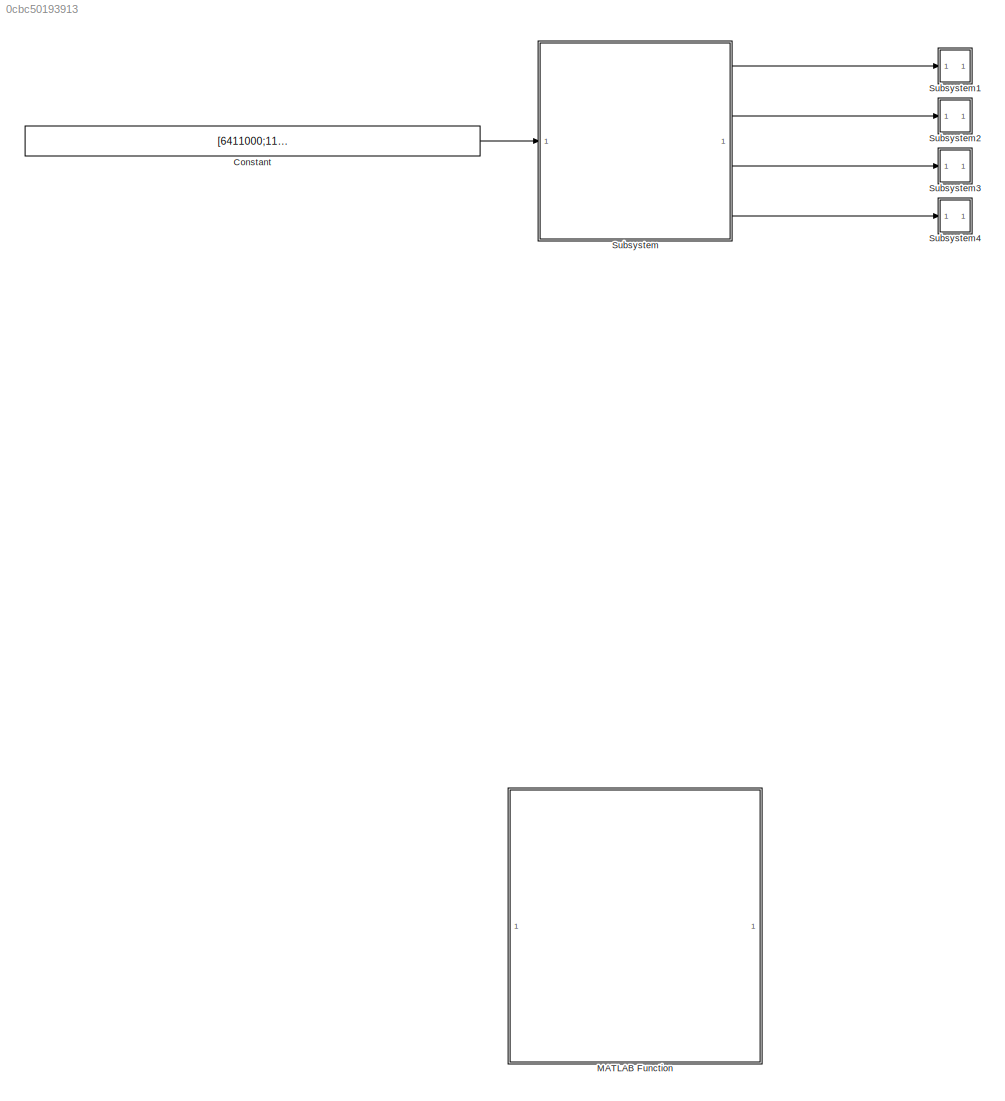
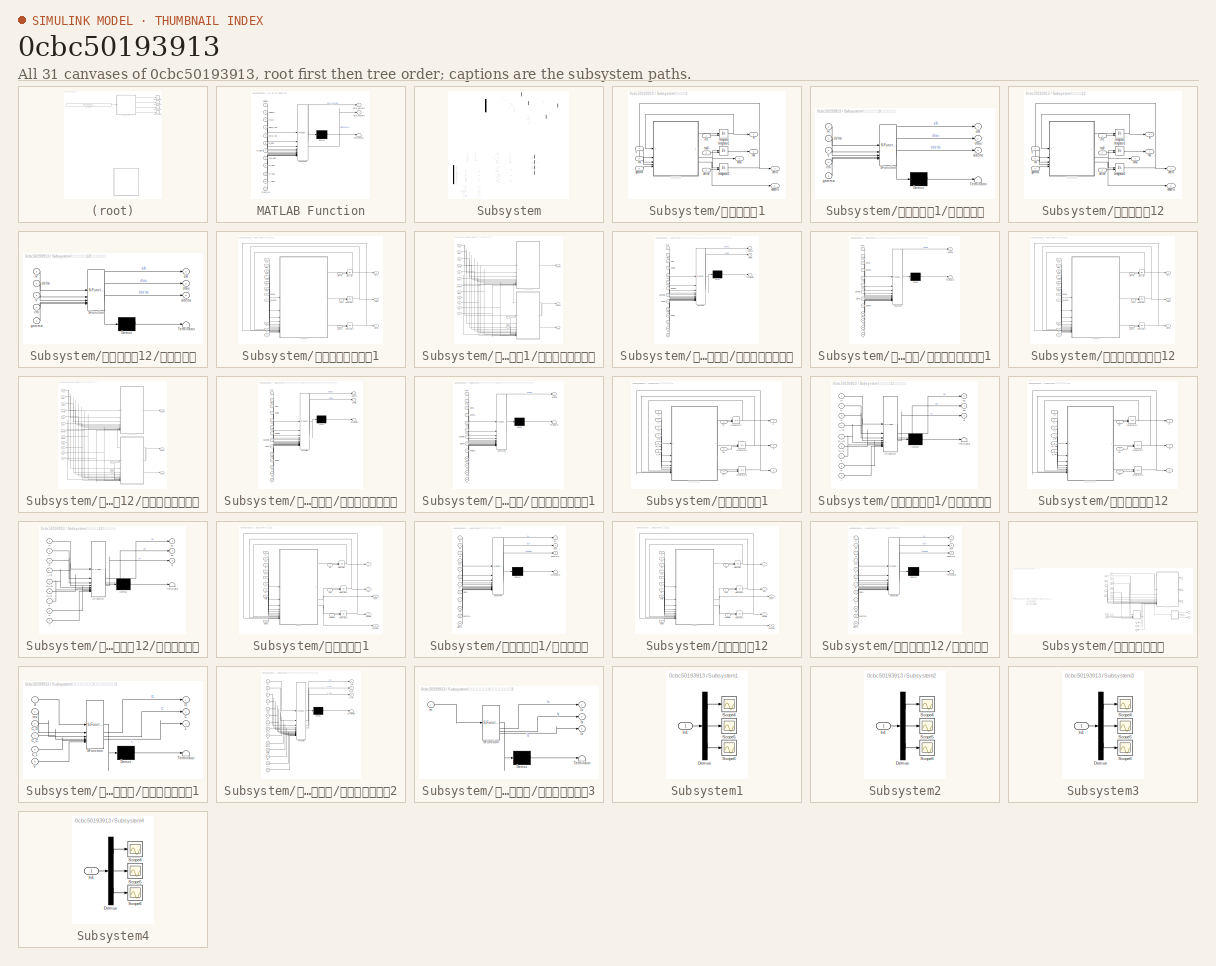
[diagram: thumbnail index - all 31 canvases of the model, root first then tree order]
MODEL slx_0cbc50193913
KIND model
CONFIG AbsTol = auto
CONFIG EnableMultiTasking = off
CONFIG FixedStep = 0.01
CONFIG MaxStep = auto
CONFIG MinStep = auto
CONFIG RelTol = 1e-3
CONFIG SampleTimeConstraint = Unconstrained
CONFIG SolverName = FixedStepAuto
CONFIG StartTime = 0.0
CONFIG StopTime = 10.0
BLOCK [Constant] Constant
  Value = [6411000;118.8;32;3000;180;0;2;3;2;0;0;0]
BLOCK [SubSystem] MATLAB Function
  ErrorFcn = Stateflow.Translate.translate
  PermitHierarchicalResolution = ExplicitOnly
  SFBlockType = MATLAB Function
  TreatAsAtomicUnit = on
BLOCK [Demux] MATLAB Function/ Demux 
  Outputs = 1
BLOCK [S-Function] MATLAB Function/ SFunction 
  EnableBusSupport = off
  FunctionName = sf_sfun
  PortCounts = [12 3]
  SFcnIsStateOwnerBlock = off
  SFunctionDeploymentMode = off
  Tag = Stateflow S-Function 14
BLOCK [Terminator] MATLAB Function/ Terminator 
BLOCK [Outport] MATLAB Function/aero_params
BLOCK [Inport] MATLAB Function/alpha_rad
  Port = 4
BLOCK [Outport] MATLAB Function/atmosphere
  Port = 2
BLOCK [Inport] MATLAB Function/beta_rad
  Port = 5
BLOCK [Inport] MATLAB Function/height
BLOCK [Inport] MATLAB Function/le_deg
  Port = 6
BLOCK [Inport] MATLAB Function/mach
  Port = 3
BLOCK [Inport] MATLAB Function/mass_kg
  Port = 12
BLOCK [Inport] MATLAB Function/p_rads
  Port = 9
BLOCK [Inport] MATLAB Function/q_rads
  Port = 10
BLOCK [Inport] MATLAB Function/r_rads
  Port = 11
BLOCK [Inport] MATLAB Function/re_deg
  Port = 7
BLOCK [Inport] MATLAB Function/rud_deg
  Port = 8
BLOCK [Inport] MATLAB Function/velocity
  Port = 2
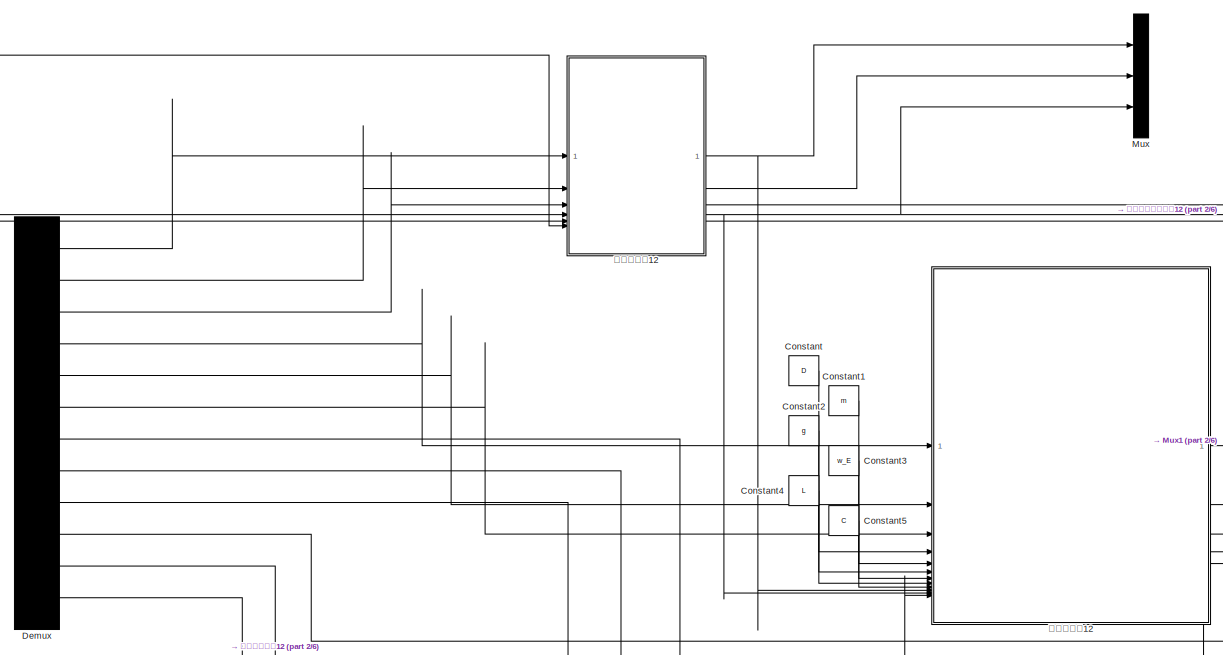
[diagram: Subsystem - part 1/6, top center region]
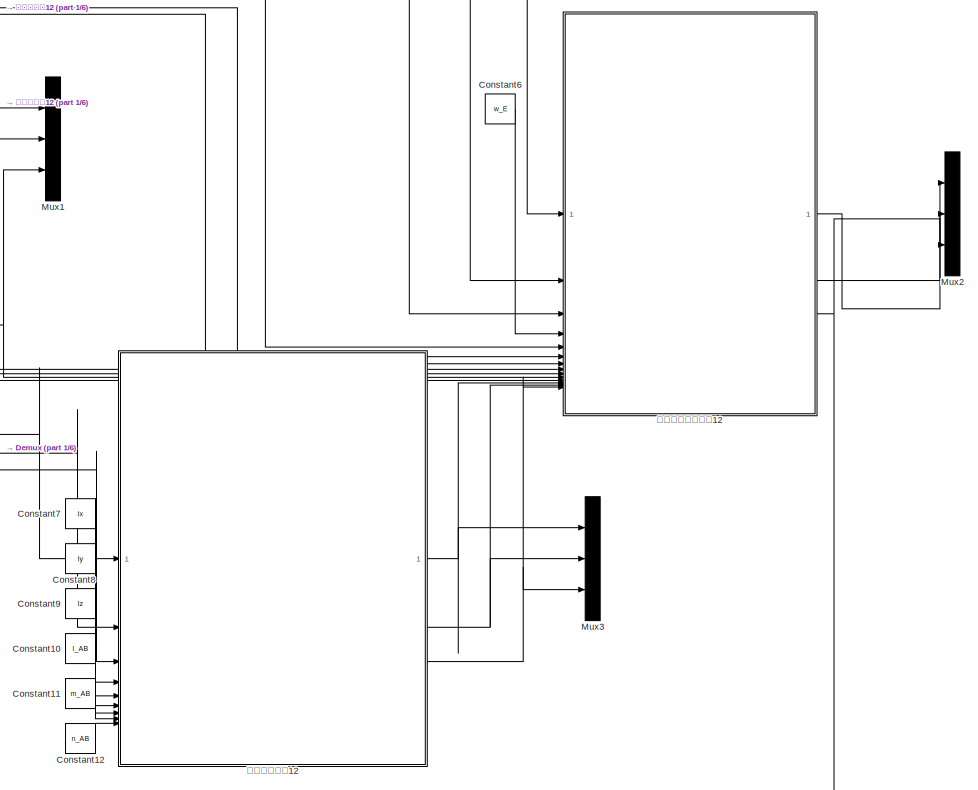
[diagram: Subsystem - part 2/6, top right region]
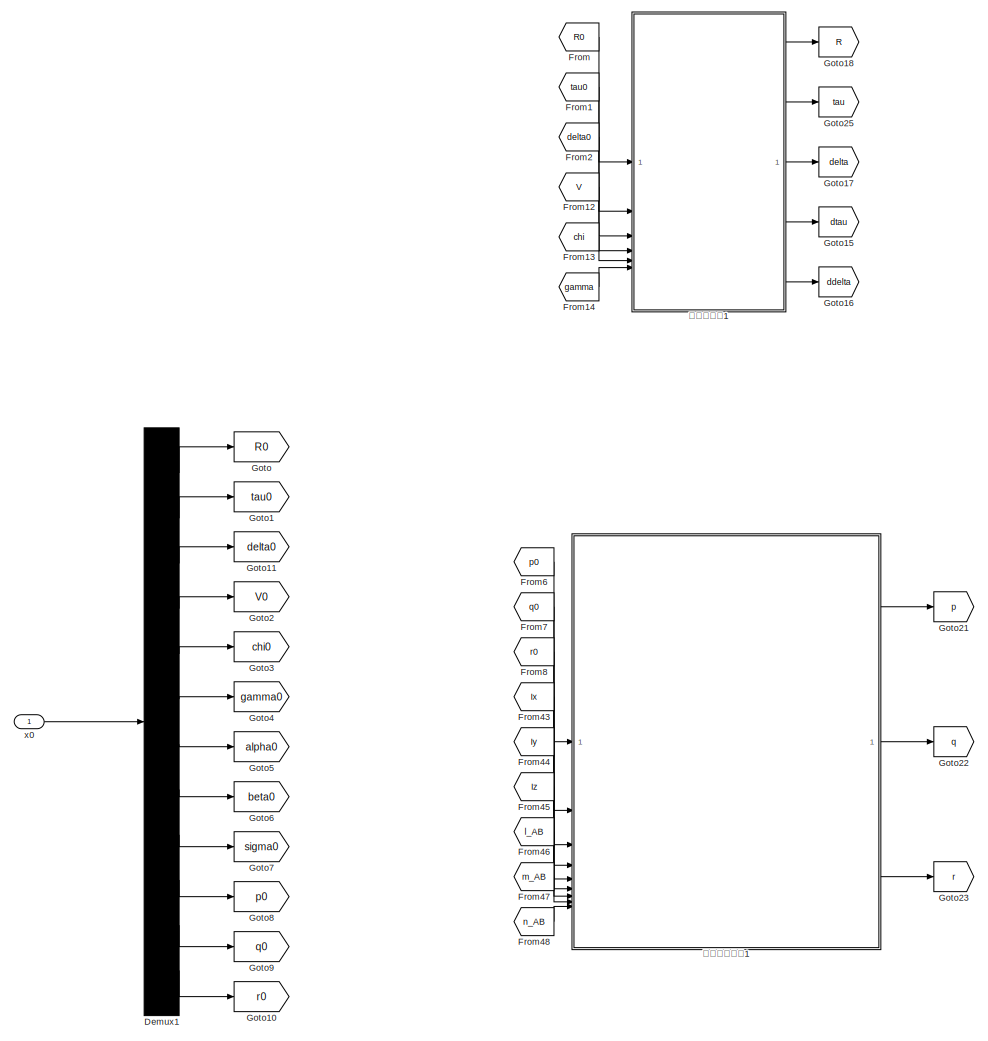
[diagram: Subsystem - part 3/6, bottom left region]
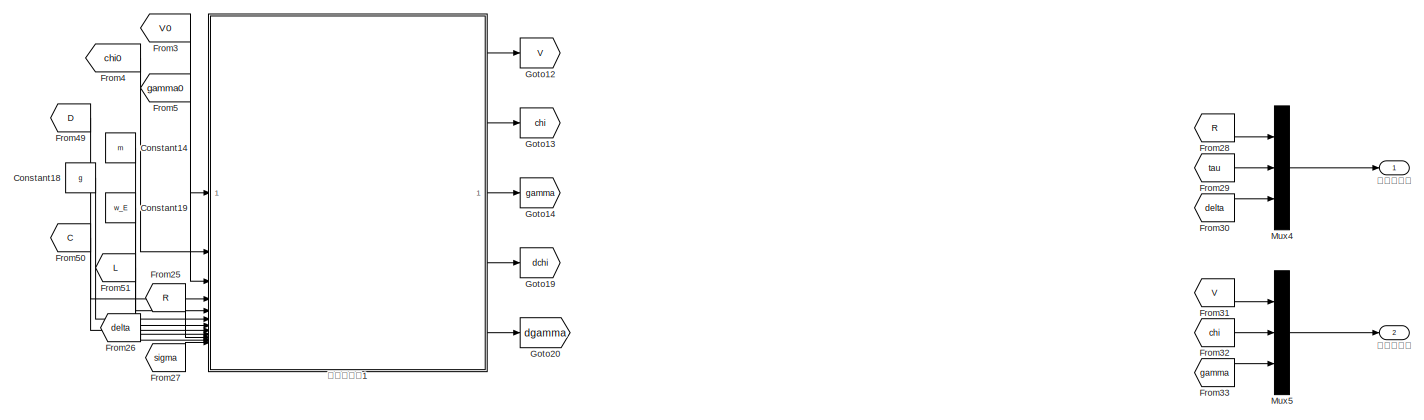
[diagram: Subsystem - part 4/6, central region]
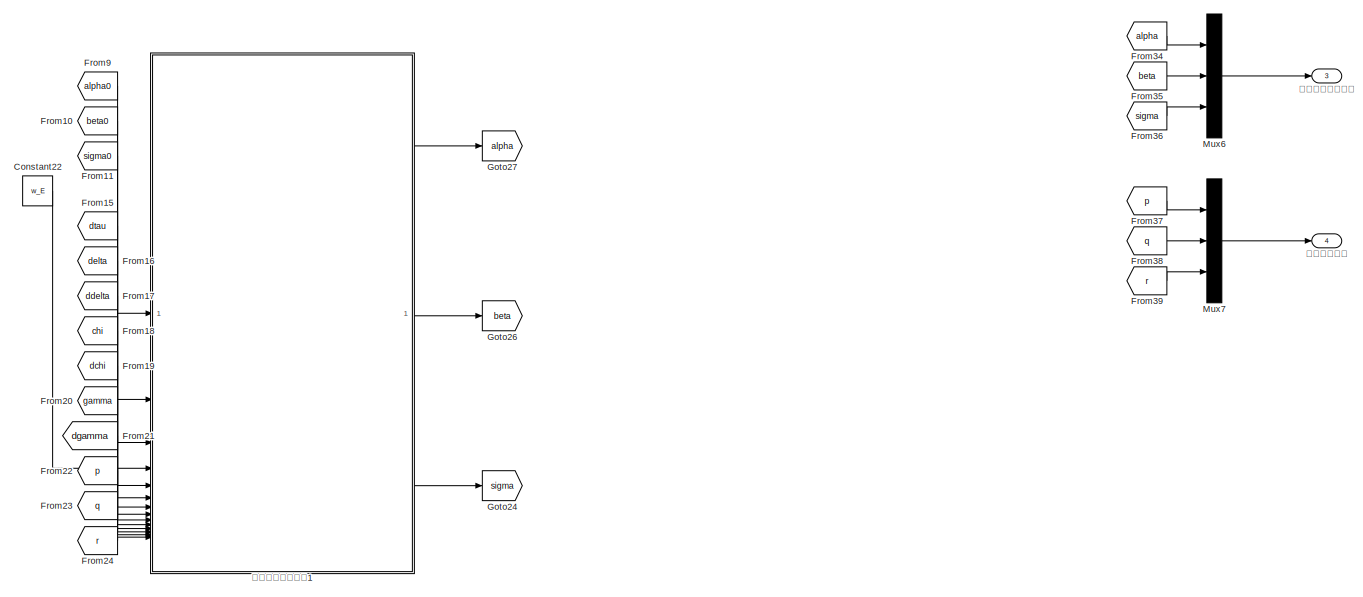
[diagram: Subsystem - part 5/6, bottom center region]
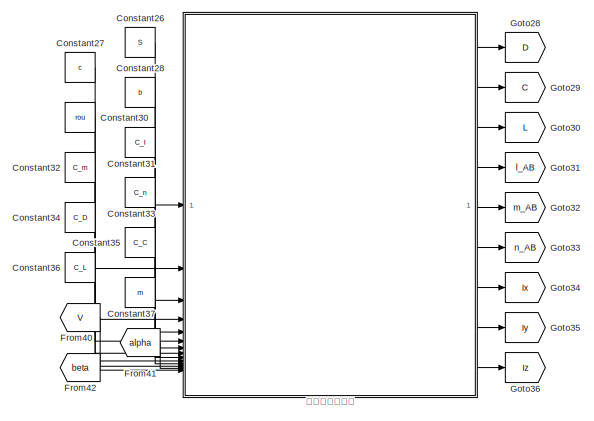
[diagram: Subsystem - part 6/6, bottom left region]
BLOCK [SubSystem] Subsystem
BLOCK [Constant] Subsystem/Constant
  Commented = on
  Value = D
BLOCK [Constant] Subsystem/Constant1
  Commented = on
  Value = m
BLOCK [Constant] Subsystem/Constant10
  Commented = on
  Value = l_AB
BLOCK [Constant] Subsystem/Constant11
  Commented = on
  Value = m_AB
BLOCK [Constant] Subsystem/Constant12
  Commented = on
  Value = n_AB
BLOCK [Constant] Subsystem/Constant14
  Value = m
BLOCK [Constant] Subsystem/Constant18
  Value = g
BLOCK [Constant] Subsystem/Constant19
  Value = w_E
BLOCK [Constant] Subsystem/Constant2
  Commented = on
  Value = g
BLOCK [Constant] Subsystem/Constant22
  Value = w_E
BLOCK [Constant] Subsystem/Constant26
  Value = S
BLOCK [Constant] Subsystem/Constant27
  Value = c
BLOCK [Constant] Subsystem/Constant28
  Value = b
BLOCK [Constant] Subsystem/Constant3
  Commented = on
  Value = w_E
BLOCK [Constant] Subsystem/Constant30
  Value = rou
BLOCK [Constant] Subsystem/Constant31
  Value = C_I
BLOCK [Constant] Subsystem/Constant32
  Value = C_m
BLOCK [Constant] Subsystem/Constant33
  Value = C_n
BLOCK [Constant] Subsystem/Constant34
  Value = C_D
BLOCK [Constant] Subsystem/Constant35
  Value = C_C
BLOCK [Constant] Subsystem/Constant36
  Value = C_L
BLOCK [Constant] Subsystem/Constant37
  Value = m
BLOCK [Constant] Subsystem/Constant4
  Commented = on
  Value = L
BLOCK [Constant] Subsystem/Constant5
  Commented = on
  Value = C
BLOCK [Constant] Subsystem/Constant6
  Commented = on
  Value = w_E
BLOCK [Constant] Subsystem/Constant7
  Commented = on
  Value = Ix
BLOCK [Constant] Subsystem/Constant8
  Commented = on
  Value = Iy
BLOCK [Constant] Subsystem/Constant9
  Commented = on
  Value = Iz
BLOCK [Demux] Subsystem/Demux
  Commented = on
  Outputs = 12
BLOCK [Demux] Subsystem/Demux1
  Outputs = 12
BLOCK [From] Subsystem/From
  GotoTag = R0
BLOCK [From] Subsystem/From1
  GotoTag = tau0
BLOCK [From] Subsystem/From10
  GotoTag = beta0
BLOCK [From] Subsystem/From11
  GotoTag = sigma0
BLOCK [From] Subsystem/From12
  GotoTag = V
BLOCK [From] Subsystem/From13
  GotoTag = chi
BLOCK [From] Subsystem/From14
  GotoTag = gamma
BLOCK [From] Subsystem/From15
  GotoTag = dtau
BLOCK [From] Subsystem/From16
  GotoTag = delta
BLOCK [From] Subsystem/From17
  GotoTag = ddelta
BLOCK [From] Subsystem/From18
  GotoTag = chi
BLOCK [From] Subsystem/From19
  GotoTag = dchi
BLOCK [From] Subsystem/From2
  GotoTag = delta0
BLOCK [From] Subsystem/From20
  GotoTag = gamma
BLOCK [From] Subsystem/From21
  GotoTag = dgamma
BLOCK [From] Subsystem/From22
  GotoTag = p
BLOCK [From] Subsystem/From23
  GotoTag = q
BLOCK [From] Subsystem/From24
  GotoTag = r
BLOCK [From] Subsystem/From25
  GotoTag = R
BLOCK [From] Subsystem/From26
  GotoTag = delta
BLOCK [From] Subsystem/From27
  GotoTag = sigma
BLOCK [From] Subsystem/From28
  GotoTag = R
BLOCK [From] Subsystem/From29
  GotoTag = tau
BLOCK [From] Subsystem/From3
  GotoTag = V0
BLOCK [From] Subsystem/From30
  GotoTag = delta
BLOCK [From] Subsystem/From31
  GotoTag = V
BLOCK [From] Subsystem/From32
  GotoTag = chi
BLOCK [From] Subsystem/From33
  GotoTag = gamma
BLOCK [From] Subsystem/From34
  GotoTag = alpha
BLOCK [From] Subsystem/From35
  GotoTag = beta
BLOCK [From] Subsystem/From36
  GotoTag = sigma
BLOCK [From] Subsystem/From37
  GotoTag = p
BLOCK [From] Subsystem/From38
  GotoTag = q
BLOCK [From] Subsystem/From39
  GotoTag = r
BLOCK [From] Subsystem/From4
  GotoTag = chi0
BLOCK [From] Subsystem/From40
  GotoTag = V
BLOCK [From] Subsystem/From41
  GotoTag = alpha
BLOCK [From] Subsystem/From42
  GotoTag = beta
BLOCK [From] Subsystem/From43
  GotoTag = Ix
BLOCK [From] Subsystem/From44
  GotoTag = Iy
BLOCK [From] Subsystem/From45
  GotoTag = Iz
BLOCK [From] Subsystem/From46
  GotoTag = l_AB
BLOCK [From] Subsystem/From47
  GotoTag = m_AB
BLOCK [From] Subsystem/From48
  GotoTag = n_AB
BLOCK [From] Subsystem/From49
  GotoTag = D
BLOCK [From] Subsystem/From5
  GotoTag = gamma0
BLOCK [From] Subsystem/From50
  GotoTag = C
BLOCK [From] Subsystem/From51
  GotoTag = L
BLOCK [From] Subsystem/From6
  GotoTag = p0
BLOCK [From] Subsystem/From7
  GotoTag = q0
BLOCK [From] Subsystem/From8
  GotoTag = r0
BLOCK [From] Subsystem/From9
  GotoTag = alpha0
BLOCK [Goto] Subsystem/Goto
  GotoTag = R0
BLOCK [Goto] Subsystem/Goto1
  GotoTag = tau0
BLOCK [Goto] Subsystem/Goto10
  GotoTag = r0
BLOCK [Goto] Subsystem/Goto11
  GotoTag = delta0
BLOCK [Goto] Subsystem/Goto12
  GotoTag = V
BLOCK [Goto] Subsystem/Goto13
  GotoTag = chi
BLOCK [Goto] Subsystem/Goto14
  GotoTag = gamma
BLOCK [Goto] Subsystem/Goto15
  GotoTag = dtau
BLOCK [Goto] Subsystem/Goto16
  GotoTag = ddelta
BLOCK [Goto] Subsystem/Goto17
  GotoTag = delta
BLOCK [Goto] Subsystem/Goto18
  GotoTag = R
BLOCK [Goto] Subsystem/Goto19
  GotoTag = dchi
BLOCK [Goto] Subsystem/Goto2
  GotoTag = V0
BLOCK [Goto] Subsystem/Goto20
  GotoTag = dgamma
BLOCK [Goto] Subsystem/Goto21
  GotoTag = p
BLOCK [Goto] Subsystem/Goto22
  GotoTag = q
BLOCK [Goto] Subsystem/Goto23
  GotoTag = r
BLOCK [Goto] Subsystem/Goto24
  GotoTag = sigma
BLOCK [Goto] Subsystem/Goto25
  GotoTag = tau
BLOCK [Goto] Subsystem/Goto26
  GotoTag = beta
BLOCK [Goto] Subsystem/Goto27
  GotoTag = alpha
BLOCK [Goto] Subsystem/Goto28
  GotoTag = D
BLOCK [Goto] Subsystem/Goto29
  GotoTag = C
BLOCK [Goto] Subsystem/Goto3
  GotoTag = chi0
BLOCK [Goto] Subsystem/Goto30
  GotoTag = L
BLOCK [Goto] Subsystem/Goto31
  GotoTag = l_AB
BLOCK [Goto] Subsystem/Goto32
  GotoTag = m_AB
BLOCK [Goto] Subsystem/Goto33
  GotoTag = n_AB
BLOCK [Goto] Subsystem/Goto34
  GotoTag = Ix
BLOCK [Goto] Subsystem/Goto35
  GotoTag = Iy
BLOCK [Goto] Subsystem/Goto36
  GotoTag = Iz
BLOCK [Goto] Subsystem/Goto4
  GotoTag = gamma0
BLOCK [Goto] Subsystem/Goto5
  GotoTag = alpha0
BLOCK [Goto] Subsystem/Goto6
  GotoTag = beta0
BLOCK [Goto] Subsystem/Goto7
  GotoTag = sigma0
BLOCK [Goto] Subsystem/Goto8
  GotoTag = p0
BLOCK [Goto] Subsystem/Goto9
  GotoTag = q0
BLOCK [Mux] Subsystem/Mux
  Commented = on
  DisplayOption = bar
  Inputs = 3
BLOCK [Mux] Subsystem/Mux1
  Commented = on
  DisplayOption = bar
  Inputs = 3
BLOCK [Mux] Subsystem/Mux2
  Commented = on
  DisplayOption = bar
  Inputs = 3
BLOCK [Mux] Subsystem/Mux3
  Commented = on
  DisplayOption = bar
  Inputs = 3
BLOCK [Mux] Subsystem/Mux4
  DisplayOption = bar
  Inputs = 3
BLOCK [Mux] Subsystem/Mux5
  DisplayOption = bar
  Inputs = 3
BLOCK [Mux] Subsystem/Mux6
  DisplayOption = bar
  Inputs = 3
BLOCK [Mux] Subsystem/Mux7
  DisplayOption = bar
  Inputs = 3
BLOCK [Inport] Subsystem/x0
BLOCK [Outport] Subsystem/位置变量组
BLOCK [SubSystem] Subsystem/位置方程组1
BLOCK [Integrator] Subsystem/位置方程组1/Integrator
  InitialConditionSource = external
BLOCK [Integrator] Subsystem/位置方程组1/Integrator1
  InitialConditionSource = external
BLOCK [Integrator] Subsystem/位置方程组1/Integrator2
  InitialConditionSource = external
BLOCK [Outport] Subsystem/位置方程组1/R
BLOCK [Inport] Subsystem/位置方程组1/R0
BLOCK [Inport] Subsystem/位置方程组1/V
  Port = 4
BLOCK [Inport] Subsystem/位置方程组1/chi
  Port = 5
BLOCK [Outport] Subsystem/位置方程组1/dddelta
  Port = 5
BLOCK [Outport] Subsystem/位置方程组1/delta
  Port = 3
BLOCK [Inport] Subsystem/位置方程组1/delta0
  Port = 3
BLOCK [Outport] Subsystem/位置方程组1/dtau
  Port = 4
BLOCK [Inport] Subsystem/位置方程组1/gamma
  Port = 6
BLOCK [Outport] Subsystem/位置方程组1/tau
  Port = 2
BLOCK [Inport] Subsystem/位置方程组1/tau0
  Port = 2
BLOCK [SubSystem] Subsystem/位置方程组1/位置方程组
  ErrorFcn = Stateflow.Translate.translate
  PermitHierarchicalResolution = ExplicitOnly
  SFBlockType = MATLAB Function
  TreatAsAtomicUnit = on
BLOCK [Demux] Subsystem/位置方程组1/位置方程组/ Demux 
  Outputs = 1
BLOCK [S-Function] Subsystem/位置方程组1/位置方程组/ SFunction 
  EnableBusSupport = on
  FunctionName = sf_sfun
  PortCounts = [5 4]
  SFcnIsStateOwnerBlock = off
  SFunctionDeploymentMode = off
  Tag = Stateflow S-Function 6
BLOCK [Terminator] Subsystem/位置方程组1/位置方程组/ Terminator 
BLOCK [Inport] Subsystem/位置方程组1/位置方程组/R
BLOCK [Inport] Subsystem/位置方程组1/位置方程组/V
  Port = 3
BLOCK [Inport] Subsystem/位置方程组1/位置方程组/chi
  Port = 4
BLOCK [Outport] Subsystem/位置方程组1/位置方程组/dR
BLOCK [Outport] Subsystem/位置方程组1/位置方程组/ddelta
  Port = 3
BLOCK [Inport] Subsystem/位置方程组1/位置方程组/delta
  Port = 2
BLOCK [Outport] Subsystem/位置方程组1/位置方程组/dtau
  Port = 2
BLOCK [Inport] Subsystem/位置方程组1/位置方程组/gamma
  Port = 5
BLOCK [SubSystem] Subsystem/位置方程组12
  Commented = on
BLOCK [Integrator] Subsystem/位置方程组12/Integrator
  InitialConditionSource = external
BLOCK [Integrator] Subsystem/位置方程组12/Integrator1
  InitialConditionSource = external
BLOCK [Integrator] Subsystem/位置方程组12/Integrator2
  InitialConditionSource = external
BLOCK [Outport] Subsystem/位置方程组12/R
BLOCK [Inport] Subsystem/位置方程组12/R0
BLOCK [Inport] Subsystem/位置方程组12/V
  Port = 4
BLOCK [Inport] Subsystem/位置方程组12/chi
  Port = 5
BLOCK [Outport] Subsystem/位置方程组12/dddelta
  Port = 5
BLOCK [Outport] Subsystem/位置方程组12/delta
  Port = 4
BLOCK [Inport] Subsystem/位置方程组12/delta0
  Port = 3
BLOCK [Outport] Subsystem/位置方程组12/dtau
  Port = 3
BLOCK [Inport] Subsystem/位置方程组12/gamma
  Port = 6
BLOCK [Outport] Subsystem/位置方程组12/tau
  Port = 2
BLOCK [Inport] Subsystem/位置方程组12/tau0
  Port = 2
BLOCK [SubSystem] Subsystem/位置方程组12/位置方程组
  ErrorFcn = Stateflow.Translate.translate
  PermitHierarchicalResolution = ExplicitOnly
  SFBlockType = MATLAB Function
  TreatAsAtomicUnit = on
BLOCK [Demux] Subsystem/位置方程组12/位置方程组/ Demux 
  Outputs = 1
BLOCK [S-Function] Subsystem/位置方程组12/位置方程组/ SFunction 
  EnableBusSupport = on
  FunctionName = sf_sfun
  PortCounts = [5 4]
  SFcnIsStateOwnerBlock = off
  SFunctionDeploymentMode = off
  Tag = Stateflow S-Function 2
BLOCK [Terminator] Subsystem/位置方程组12/位置方程组/ Terminator 
BLOCK [Inport] Subsystem/位置方程组12/位置方程组/R
BLOCK [Inport] Subsystem/位置方程组12/位置方程组/V
  Port = 3
BLOCK [Inport] Subsystem/位置方程组12/位置方程组/chi
  Port = 4
BLOCK [Outport] Subsystem/位置方程组12/位置方程组/dR
BLOCK [Outport] Subsystem/位置方程组12/位置方程组/ddelta
  Port = 3
BLOCK [Inport] Subsystem/位置方程组12/位置方程组/delta
  Port = 2
BLOCK [Outport] Subsystem/位置方程组12/位置方程组/dtau
  Port = 2
BLOCK [Inport] Subsystem/位置方程组12/位置方程组/gamma
  Port = 5
BLOCK [Outport] Subsystem/气流姿态角变量组
  Port = 3
BLOCK [SubSystem] Subsystem/气流姿态角方程组1
BLOCK [Integrator] Subsystem/气流姿态角方程组1/Integrator
  InitialConditionSource = external
BLOCK [Integrator] Subsystem/气流姿态角方程组1/Integrator1
  InitialConditionSource = external
BLOCK [Integrator] Subsystem/气流姿态角方程组1/Integrator2
  InitialConditionSource = external
BLOCK [Outport] Subsystem/气流姿态角方程组1/alpha
BLOCK [Inport] Subsystem/气流姿态角方程组1/alpha0
BLOCK [Outport] Subsystem/气流姿态角方程组1/beta
  Port = 2
BLOCK [Inport] Subsystem/气流姿态角方程组1/beta0
  Port = 2
BLOCK [Inport] Subsystem/气流姿态角方程组1/chi
  Port = 8
BLOCK [Inport] Subsystem/气流姿态角方程组1/dchi
  Port = 9
BLOCK [Inport] Subsystem/气流姿态角方程组1/ddelta
  Port = 7
BLOCK [Inport] Subsystem/气流姿态角方程组1/delta
  Port = 6
BLOCK [Inport] Subsystem/气流姿态角方程组1/dgamma
  Port = 11
BLOCK [Inport] Subsystem/气流姿态角方程组1/dtau
  Port = 5
BLOCK [Inport] Subsystem/气流姿态角方程组1/gamma
  Port = 10
BLOCK [Inport] Subsystem/气流姿态角方程组1/p
  Port = 12
BLOCK [Inport] Subsystem/气流姿态角方程组1/q
  Port = 13
BLOCK [Inport] Subsystem/气流姿态角方程组1/r
  Port = 14
BLOCK [Outport] Subsystem/气流姿态角方程组1/sigma
  Port = 3
BLOCK [Inport] Subsystem/气流姿态角方程组1/sigma0
  Port = 3
BLOCK [Inport] Subsystem/气流姿态角方程组1/w_E
  Port = 4
BLOCK [SubSystem] Subsystem/气流姿态角方程组1/气流姿态角方程组
BLOCK [Inport] Subsystem/气流姿态角方程组1/气流姿态角方程组/alpha
  Port = 9
BLOCK [Inport] Subsystem/气流姿态角方程组1/气流姿态角方程组/beta
  Port = 10
BLOCK [Inport] Subsystem/气流姿态角方程组1/气流姿态角方程组/chi
  Port = 5
BLOCK [Outport] Subsystem/气流姿态角方程组1/气流姿态角方程组/dalpha
BLOCK [Outport] Subsystem/气流姿态角方程组1/气流姿态角方程组/dbeta
  Port = 2
BLOCK [Inport] Subsystem/气流姿态角方程组1/气流姿态角方程组/dchi
  Port = 6
BLOCK [Inport] Subsystem/气流姿态角方程组1/气流姿态角方程组/ddelta
  Port = 4
BLOCK [Inport] Subsystem/气流姿态角方程组1/气流姿态角方程组/delta
  Port = 3
BLOCK [Inport] Subsystem/气流姿态角方程组1/气流姿态角方程组/dgamma
  Port = 8
BLOCK [Outport] Subsystem/气流姿态角方程组1/气流姿态角方程组/dsigma
  Port = 3
BLOCK [Inport] Subsystem/气流姿态角方程组1/气流姿态角方程组/dtau
  Port = 2
BLOCK [Inport] Subsystem/气流姿态角方程组1/气流姿态角方程组/gamma
  Port = 7
BLOCK [Inport] Subsystem/气流姿态角方程组1/气流姿态角方程组/p
  Port = 12
BLOCK [Inport] Subsystem/气流姿态角方程组1/气流姿态角方程组/q
  Port = 13
BLOCK [Inport] Subsystem/气流姿态角方程组1/气流姿态角方程组/r
  Port = 14
BLOCK [Inport] Subsystem/气流姿态角方程组1/气流姿态角方程组/sigma
  Port = 11
BLOCK [Inport] Subsystem/气流姿态角方程组1/气流姿态角方程组/w_E
BLOCK [SubSystem] Subsystem/气流姿态角方程组1/气流姿态角方程组/气流姿态角方程组
  ErrorFcn = Stateflow.Translate.translate
  PermitHierarchicalResolution = ExplicitOnly
  SFBlockType = MATLAB Function
  TreatAsAtomicUnit = on
BLOCK [Demux] Subsystem/气流姿态角方程组1/气流姿态角方程组/气流姿态角方程组/ Demux 
  Outputs = 1
BLOCK [S-Function] Subsystem/气流姿态角方程组1/气流姿态角方程组/气流姿态角方程组/ SFunction 
  EnableBusSupport = on
  FunctionName = sf_sfun
  PortCounts = [14 3]
  SFcnIsStateOwnerBlock = off
  SFunctionDeploymentMode = off
  Tag = Stateflow S-Function 7
BLOCK [Terminator] Subsystem/气流姿态角方程组1/气流姿态角方程组/气流姿态角方程组/ Terminator 
BLOCK [Inport] Subsystem/气流姿态角方程组1/气流姿态角方程组/气流姿态角方程组/alpha
  Port = 9
BLOCK [Inport] Subsystem/气流姿态角方程组1/气流姿态角方程组/气流姿态角方程组/beta
  Port = 10
BLOCK [Inport] Subsystem/气流姿态角方程组1/气流姿态角方程组/气流姿态角方程组/chi
  Port = 5
BLOCK [Outport] Subsystem/气流姿态角方程组1/气流姿态角方程组/气流姿态角方程组/dalpha
BLOCK [Outport] Subsystem/气流姿态角方程组1/气流姿态角方程组/气流姿态角方程组/dbeta
  Port = 2
BLOCK [Inport] Subsystem/气流姿态角方程组1/气流姿态角方程组/气流姿态角方程组/dchi
  Port = 6
BLOCK [Inport] Subsystem/气流姿态角方程组1/气流姿态角方程组/气流姿态角方程组/ddelta
  Port = 4
BLOCK [Inport] Subsystem/气流姿态角方程组1/气流姿态角方程组/气流姿态角方程组/delta
  Port = 3
BLOCK [Inport] Subsystem/气流姿态角方程组1/气流姿态角方程组/气流姿态角方程组/dgamma
  Port = 8
BLOCK [Inport] Subsystem/气流姿态角方程组1/气流姿态角方程组/气流姿态角方程组/dtau
  Port = 2
BLOCK [Inport] Subsystem/气流姿态角方程组1/气流姿态角方程组/气流姿态角方程组/gamma
  Port = 7
BLOCK [Inport] Subsystem/气流姿态角方程组1/气流姿态角方程组/气流姿态角方程组/p
  Port = 12
BLOCK [Inport] Subsystem/气流姿态角方程组1/气流姿态角方程组/气流姿态角方程组/q
  Port = 13
BLOCK [Inport] Subsystem/气流姿态角方程组1/气流姿态角方程组/气流姿态角方程组/r
  Port = 14
BLOCK [Inport] Subsystem/气流姿态角方程组1/气流姿态角方程组/气流姿态角方程组/sigma
  Port = 11
BLOCK [Inport] Subsystem/气流姿态角方程组1/气流姿态角方程组/气流姿态角方程组/w_E
BLOCK [SubSystem] Subsystem/气流姿态角方程组1/气流姿态角方程组/气流姿态角方程组1
  ErrorFcn = Stateflow.Translate.translate
  PermitHierarchicalResolution = ExplicitOnly
  SFBlockType = MATLAB Function
  TreatAsAtomicUnit = on
BLOCK [Demux] Subsystem/气流姿态角方程组1/气流姿态角方程组/气流姿态角方程组1/ Demux 
  Outputs = 1
BLOCK [S-Function] Subsystem/气流姿态角方程组1/气流姿态角方程组/气流姿态角方程组1/ SFunction 
  EnableBusSupport = on
  FunctionName = sf_sfun
  PortCounts = [13 2]
  SFcnIsStateOwnerBlock = off
  SFunctionDeploymentMode = off
  Tag = Stateflow S-Function 8
BLOCK [Terminator] Subsystem/气流姿态角方程组1/气流姿态角方程组/气流姿态角方程组1/ Terminator 
BLOCK [Inport] Subsystem/气流姿态角方程组1/气流姿态角方程组/气流姿态角方程组1/alpha
  Port = 8
BLOCK [Inport] Subsystem/气流姿态角方程组1/气流姿态角方程组/气流姿态角方程组1/beta
  Port = 10
BLOCK [Inport] Subsystem/气流姿态角方程组1/气流姿态角方程组/气流姿态角方程组1/chi
  Port = 5
BLOCK [Inport] Subsystem/气流姿态角方程组1/气流姿态角方程组/气流姿态角方程组1/dalpha
  Port = 9
BLOCK [Inport] Subsystem/气流姿态角方程组1/气流姿态角方程组/气流姿态角方程组1/dchi
  Port = 6
BLOCK [Inport] Subsystem/气流姿态角方程组1/气流姿态角方程组/气流姿态角方程组1/ddelta
  Port = 4
BLOCK [Inport] Subsystem/气流姿态角方程组1/气流姿态角方程组/气流姿态角方程组1/delta
  Port = 3
BLOCK [Outport] Subsystem/气流姿态角方程组1/气流姿态角方程组/气流姿态角方程组1/dsigma
BLOCK [Inport] Subsystem/气流姿态角方程组1/气流姿态角方程组/气流姿态角方程组1/dtau
  Port = 2
BLOCK [Inport] Subsystem/气流姿态角方程组1/气流姿态角方程组/气流姿态角方程组1/gamma
  Port = 7
BLOCK [Inport] Subsystem/气流姿态角方程组1/气流姿态角方程组/气流姿态角方程组1/p
  Port = 11
BLOCK [Inport] Subsystem/气流姿态角方程组1/气流姿态角方程组/气流姿态角方程组1/q
  Port = 12
BLOCK [Inport] Subsystem/气流姿态角方程组1/气流姿态角方程组/气流姿态角方程组1/r
  Port = 13
BLOCK [Inport] Subsystem/气流姿态角方程组1/气流姿态角方程组/气流姿态角方程组1/w_E
BLOCK [SubSystem] Subsystem/气流姿态角方程组12
  Commented = on
BLOCK [Integrator] Subsystem/气流姿态角方程组12/Integrator
  InitialConditionSource = external
BLOCK [Integrator] Subsystem/气流姿态角方程组12/Integrator1
  InitialConditionSource = external
BLOCK [Integrator] Subsystem/气流姿态角方程组12/Integrator2
  InitialConditionSource = external
BLOCK [Outport] Subsystem/气流姿态角方程组12/alpha
BLOCK [Inport] Subsystem/气流姿态角方程组12/alpha0
BLOCK [Outport] Subsystem/气流姿态角方程组12/beta
  Port = 2
BLOCK [Inport] Subsystem/气流姿态角方程组12/beta0
  Port = 2
BLOCK [Inport] Subsystem/气流姿态角方程组12/chi
  Port = 8
BLOCK [Inport] Subsystem/气流姿态角方程组12/dchi
  Port = 9
BLOCK [Inport] Subsystem/气流姿态角方程组12/ddelta
  Port = 7
BLOCK [Inport] Subsystem/气流姿态角方程组12/delta
  Port = 6
BLOCK [Inport] Subsystem/气流姿态角方程组12/dgamma
  Port = 11
BLOCK [Inport] Subsystem/气流姿态角方程组12/dtau
  Port = 5
BLOCK [Inport] Subsystem/气流姿态角方程组12/gamma
  Port = 10
BLOCK [Inport] Subsystem/气流姿态角方程组12/p
  Port = 12
BLOCK [Inport] Subsystem/气流姿态角方程组12/q
  Port = 13
BLOCK [Inport] Subsystem/气流姿态角方程组12/r
  Port = 14
BLOCK [Outport] Subsystem/气流姿态角方程组12/sigma
  Port = 3
BLOCK [Inport] Subsystem/气流姿态角方程组12/sigma0
  Port = 3
BLOCK [Inport] Subsystem/气流姿态角方程组12/w_E
  Port = 4
BLOCK [SubSystem] Subsystem/气流姿态角方程组12/气流姿态角方程组
BLOCK [Inport] Subsystem/气流姿态角方程组12/气流姿态角方程组/alpha
  Port = 9
BLOCK [Inport] Subsystem/气流姿态角方程组12/气流姿态角方程组/beta
  Port = 10
BLOCK [Inport] Subsystem/气流姿态角方程组12/气流姿态角方程组/chi
  Port = 5
BLOCK [Outport] Subsystem/气流姿态角方程组12/气流姿态角方程组/dalpha
BLOCK [Outport] Subsystem/气流姿态角方程组12/气流姿态角方程组/dbeta
  Port = 2
BLOCK [Inport] Subsystem/气流姿态角方程组12/气流姿态角方程组/dchi
  Port = 6
BLOCK [Inport] Subsystem/气流姿态角方程组12/气流姿态角方程组/ddelta
  Port = 4
BLOCK [Inport] Subsystem/气流姿态角方程组12/气流姿态角方程组/delta
  Port = 3
BLOCK [Inport] Subsystem/气流姿态角方程组12/气流姿态角方程组/dgamma
  Port = 8
BLOCK [Outport] Subsystem/气流姿态角方程组12/气流姿态角方程组/dsigma
  Port = 3
BLOCK [Inport] Subsystem/气流姿态角方程组12/气流姿态角方程组/dtau
  Port = 2
BLOCK [Inport] Subsystem/气流姿态角方程组12/气流姿态角方程组/gamma
  Port = 7
BLOCK [Inport] Subsystem/气流姿态角方程组12/气流姿态角方程组/p
  Port = 12
BLOCK [Inport] Subsystem/气流姿态角方程组12/气流姿态角方程组/q
  Port = 13
BLOCK [Inport] Subsystem/气流姿态角方程组12/气流姿态角方程组/r
  Port = 14
BLOCK [Inport] Subsystem/气流姿态角方程组12/气流姿态角方程组/sigma
  Port = 11
BLOCK [Inport] Subsystem/气流姿态角方程组12/气流姿态角方程组/w_E
BLOCK [SubSystem] Subsystem/气流姿态角方程组12/气流姿态角方程组/气流姿态角方程组
  ErrorFcn = Stateflow.Translate.translate
  PermitHierarchicalResolution = ExplicitOnly
  SFBlockType = MATLAB Function
  TreatAsAtomicUnit = on
BLOCK [Demux] Subsystem/气流姿态角方程组12/气流姿态角方程组/气流姿态角方程组/ Demux 
  Outputs = 1
BLOCK [S-Function] Subsystem/气流姿态角方程组12/气流姿态角方程组/气流姿态角方程组/ SFunction 
  EnableBusSupport = on
  FunctionName = sf_sfun
  PortCounts = [14 3]
  SFcnIsStateOwnerBlock = off
  SFunctionDeploymentMode = off
  Tag = Stateflow S-Function 3
BLOCK [Terminator] Subsystem/气流姿态角方程组12/气流姿态角方程组/气流姿态角方程组/ Terminator 
BLOCK [Inport] Subsystem/气流姿态角方程组12/气流姿态角方程组/气流姿态角方程组/alpha
  Port = 9
BLOCK [Inport] Subsystem/气流姿态角方程组12/气流姿态角方程组/气流姿态角方程组/beta
  Port = 10
BLOCK [Inport] Subsystem/气流姿态角方程组12/气流姿态角方程组/气流姿态角方程组/chi
  Port = 5
BLOCK [Outport] Subsystem/气流姿态角方程组12/气流姿态角方程组/气流姿态角方程组/dalpha
BLOCK [Outport] Subsystem/气流姿态角方程组12/气流姿态角方程组/气流姿态角方程组/dbeta
  Port = 2
BLOCK [Inport] Subsystem/气流姿态角方程组12/气流姿态角方程组/气流姿态角方程组/dchi
  Port = 6
BLOCK [Inport] Subsystem/气流姿态角方程组12/气流姿态角方程组/气流姿态角方程组/ddelta
  Port = 4
BLOCK [Inport] Subsystem/气流姿态角方程组12/气流姿态角方程组/气流姿态角方程组/delta
  Port = 3
BLOCK [Inport] Subsystem/气流姿态角方程组12/气流姿态角方程组/气流姿态角方程组/dgamma
  Port = 8
BLOCK [Inport] Subsystem/气流姿态角方程组12/气流姿态角方程组/气流姿态角方程组/dtau
  Port = 2
BLOCK [Inport] Subsystem/气流姿态角方程组12/气流姿态角方程组/气流姿态角方程组/gamma
  Port = 7
BLOCK [Inport] Subsystem/气流姿态角方程组12/气流姿态角方程组/气流姿态角方程组/p
  Port = 12
BLOCK [Inport] Subsystem/气流姿态角方程组12/气流姿态角方程组/气流姿态角方程组/q
  Port = 13
BLOCK [Inport] Subsystem/气流姿态角方程组12/气流姿态角方程组/气流姿态角方程组/r
  Port = 14
BLOCK [Inport] Subsystem/气流姿态角方程组12/气流姿态角方程组/气流姿态角方程组/sigma
  Port = 11
BLOCK [Inport] Subsystem/气流姿态角方程组12/气流姿态角方程组/气流姿态角方程组/w_E
BLOCK [SubSystem] Subsystem/气流姿态角方程组12/气流姿态角方程组/气流姿态角方程组1
  ErrorFcn = Stateflow.Translate.translate
  PermitHierarchicalResolution = ExplicitOnly
  SFBlockType = MATLAB Function
  TreatAsAtomicUnit = on
BLOCK [Demux] Subsystem/气流姿态角方程组12/气流姿态角方程组/气流姿态角方程组1/ Demux 
  Outputs = 1
BLOCK [S-Function] Subsystem/气流姿态角方程组12/气流姿态角方程组/气流姿态角方程组1/ SFunction 
  EnableBusSupport = on
  FunctionName = sf_sfun
  PortCounts = [13 2]
  SFcnIsStateOwnerBlock = off
  SFunctionDeploymentMode = off
  Tag = Stateflow S-Function 4
BLOCK [Terminator] Subsystem/气流姿态角方程组12/气流姿态角方程组/气流姿态角方程组1/ Terminator 
BLOCK [Inport] Subsystem/气流姿态角方程组12/气流姿态角方程组/气流姿态角方程组1/alpha
  Port = 8
BLOCK [Inport] Subsystem/气流姿态角方程组12/气流姿态角方程组/气流姿态角方程组1/beta
  Port = 10
BLOCK [Inport] Subsystem/气流姿态角方程组12/气流姿态角方程组/气流姿态角方程组1/chi
  Port = 5
BLOCK [Inport] Subsystem/气流姿态角方程组12/气流姿态角方程组/气流姿态角方程组1/dalpha
  Port = 9
BLOCK [Inport] Subsystem/气流姿态角方程组12/气流姿态角方程组/气流姿态角方程组1/dchi
  Port = 6
BLOCK [Inport] Subsystem/气流姿态角方程组12/气流姿态角方程组/气流姿态角方程组1/ddelta
  Port = 4
BLOCK [Inport] Subsystem/气流姿态角方程组12/气流姿态角方程组/气流姿态角方程组1/delta
  Port = 3
BLOCK [Outport] Subsystem/气流姿态角方程组12/气流姿态角方程组/气流姿态角方程组1/dsigma
BLOCK [Inport] Subsystem/气流姿态角方程组12/气流姿态角方程组/气流姿态角方程组1/dtau
  Port = 2
BLOCK [Inport] Subsystem/气流姿态角方程组12/气流姿态角方程组/气流姿态角方程组1/gamma
  Port = 7
BLOCK [Inport] Subsystem/气流姿态角方程组12/气流姿态角方程组/气流姿态角方程组1/p
  Port = 11
BLOCK [Inport] Subsystem/气流姿态角方程组12/气流姿态角方程组/气流姿态角方程组1/q
  Port = 12
BLOCK [Inport] Subsystem/气流姿态角方程组12/气流姿态角方程组/气流姿态角方程组1/r
  Port = 13
BLOCK [Inport] Subsystem/气流姿态角方程组12/气流姿态角方程组/气流姿态角方程组1/w_E
BLOCK [Outport] Subsystem/角速率变量组
  Port = 4
BLOCK [SubSystem] Subsystem/角速率方程组1
BLOCK [Integrator] Subsystem/角速率方程组1/Integrator1
  InitialConditionSource = external
BLOCK [Integrator] Subsystem/角速率方程组1/Integrator2
  InitialConditionSource = external
BLOCK [Integrator] Subsystem/角速率方程组1/Integrator3
  InitialConditionSource = external
BLOCK [Inport] Subsystem/角速率方程组1/Ix
  Port = 4
BLOCK [Inport] Subsystem/角速率方程组1/Iy
  Port = 5
BLOCK [Inport] Subsystem/角速率方程组1/Iz
  Port = 6
BLOCK [Inport] Subsystem/角速率方程组1/l_AB
  Port = 7
BLOCK [Inport] Subsystem/角速率方程组1/m_AB
  Port = 8
BLOCK [Inport] Subsystem/角速率方程组1/n_AB
  Port = 9
BLOCK [Outport] Subsystem/角速率方程组1/p
BLOCK [Inport] Subsystem/角速率方程组1/p0
BLOCK [Outport] Subsystem/角速率方程组1/q
  Port = 2
BLOCK [Inport] Subsystem/角速率方程组1/q0
  Port = 2
BLOCK [Outport] Subsystem/角速率方程组1/r
  Port = 3
BLOCK [Inport] Subsystem/角速率方程组1/r0
  Port = 3
BLOCK [SubSystem] Subsystem/角速率方程组1/角速率方程组
  ErrorFcn = Stateflow.Translate.translate
  PermitHierarchicalResolution = ExplicitOnly
  SFBlockType = MATLAB Function
  TreatAsAtomicUnit = on
BLOCK [Demux] Subsystem/角速率方程组1/角速率方程组/ Demux 
  Outputs = 1
BLOCK [S-Function] Subsystem/角速率方程组1/角速率方程组/ SFunction 
  EnableBusSupport = on
  FunctionName = sf_sfun
  PortCounts = [9 4]
  SFcnIsStateOwnerBlock = off
  SFunctionDeploymentMode = off
  Tag = Stateflow S-Function 9
BLOCK [Terminator] Subsystem/角速率方程组1/角速率方程组/ Terminator 
BLOCK [Inport] Subsystem/角速率方程组1/角速率方程组/Ix
BLOCK [Inport] Subsystem/角速率方程组1/角速率方程组/Iy
  Port = 2
BLOCK [Inport] Subsystem/角速率方程组1/角速率方程组/Iz
  Port = 3
BLOCK [Outport] Subsystem/角速率方程组1/角速率方程组/dp
BLOCK [Outport] Subsystem/角速率方程组1/角速率方程组/dq
  Port = 2
BLOCK [Outport] Subsystem/角速率方程组1/角速率方程组/dr
  Port = 3
BLOCK [Inport] Subsystem/角速率方程组1/角速率方程组/l_AB
  Port = 4
BLOCK [Inport] Subsystem/角速率方程组1/角速率方程组/m_AB
  Port = 5
BLOCK [Inport] Subsystem/角速率方程组1/角速率方程组/n_AB
  Port = 6
BLOCK [Inport] Subsystem/角速率方程组1/角速率方程组/p
  Port = 7
BLOCK [Inport] Subsystem/角速率方程组1/角速率方程组/q
  Port = 8
BLOCK [Inport] Subsystem/角速率方程组1/角速率方程组/r
  Port = 9
BLOCK [SubSystem] Subsystem/角速率方程组12
  Commented = on
BLOCK [Integrator] Subsystem/角速率方程组12/Integrator1
  InitialConditionSource = external
BLOCK [Integrator] Subsystem/角速率方程组12/Integrator2
  InitialConditionSource = external
BLOCK [Integrator] Subsystem/角速率方程组12/Integrator3
  InitialConditionSource = external
BLOCK [Inport] Subsystem/角速率方程组12/Ix
  Port = 4
BLOCK [Inport] Subsystem/角速率方程组12/Iy
  Port = 5
BLOCK [Inport] Subsystem/角速率方程组12/Iz
  Port = 6
BLOCK [Inport] Subsystem/角速率方程组12/l_AB
  Port = 7
BLOCK [Inport] Subsystem/角速率方程组12/m_AB
  Port = 8
BLOCK [Inport] Subsystem/角速率方程组12/n_AB
  Port = 9
BLOCK [Outport] Subsystem/角速率方程组12/p
BLOCK [Inport] Subsystem/角速率方程组12/p0
BLOCK [Outport] Subsystem/角速率方程组12/q
  Port = 2
BLOCK [Inport] Subsystem/角速率方程组12/q0
  Port = 2
BLOCK [Outport] Subsystem/角速率方程组12/r
  Port = 3
BLOCK [Inport] Subsystem/角速率方程组12/r0
  Port = 3
BLOCK [SubSystem] Subsystem/角速率方程组12/角速率方程组
  ErrorFcn = Stateflow.Translate.translate
  PermitHierarchicalResolution = ExplicitOnly
  SFBlockType = MATLAB Function
  TreatAsAtomicUnit = on
BLOCK [Demux] Subsystem/角速率方程组12/角速率方程组/ Demux 
  Outputs = 1
BLOCK [S-Function] Subsystem/角速率方程组12/角速率方程组/ SFunction 
  EnableBusSupport = on
  FunctionName = sf_sfun
  PortCounts = [9 4]
  SFcnIsStateOwnerBlock = off
  SFunctionDeploymentMode = off
  Tag = Stateflow S-Function 5
BLOCK [Terminator] Subsystem/角速率方程组12/角速率方程组/ Terminator 
BLOCK [Inport] Subsystem/角速率方程组12/角速率方程组/Ix
BLOCK [Inport] Subsystem/角速率方程组12/角速率方程组/Iy
  Port = 2
BLOCK [Inport] Subsystem/角速率方程组12/角速率方程组/Iz
  Port = 3
BLOCK [Outport] Subsystem/角速率方程组12/角速率方程组/dp
BLOCK [Outport] Subsystem/角速率方程组12/角速率方程组/dq
  Port = 2
BLOCK [Outport] Subsystem/角速率方程组12/角速率方程组/dr
  Port = 3
BLOCK [Inport] Subsystem/角速率方程组12/角速率方程组/l_AB
  Port = 4
BLOCK [Inport] Subsystem/角速率方程组12/角速率方程组/m_AB
  Port = 5
BLOCK [Inport] Subsystem/角速率方程组12/角速率方程组/n_AB
  Port = 6
BLOCK [Inport] Subsystem/角速率方程组12/角速率方程组/p
  Port = 7
BLOCK [Inport] Subsystem/角速率方程组12/角速率方程组/q
  Port = 8
BLOCK [Inport] Subsystem/角速率方程组12/角速率方程组/r
  Port = 9
BLOCK [Outport] Subsystem/速度变量组
  Port = 2
BLOCK [SubSystem] Subsystem/速度方程组1
BLOCK [Inport] Subsystem/速度方程组1/C
  Port = 9
BLOCK [Inport] Subsystem/速度方程组1/D
  Port = 4
BLOCK [Integrator] Subsystem/速度方程组1/Integrator
  InitialConditionSource = external
BLOCK [Integrator] Subsystem/速度方程组1/Integrator1
  InitialConditionSource = external
BLOCK [Integrator] Subsystem/速度方程组1/Integrator2
  InitialConditionSource = external
BLOCK [Inport] Subsystem/速度方程组1/L
  Port = 8
BLOCK [Inport] Subsystem/速度方程组1/R
  Port = 10
BLOCK [Outport] Subsystem/速度方程组1/V
BLOCK [Inport] Subsystem/速度方程组1/V0
BLOCK [Outport] Subsystem/速度方程组1/chi
  Port = 2
BLOCK [Inport] Subsystem/速度方程组1/chi0
  Port = 2
BLOCK [Outport] Subsystem/速度方程组1/dchi
  Port = 4
BLOCK [Inport] Subsystem/速度方程组1/delta
  Port = 11
BLOCK [Outport] Subsystem/速度方程组1/dgamma
  Port = 5
BLOCK [Inport] Subsystem/速度方程组1/g
  Port = 6
BLOCK [Outport] Subsystem/速度方程组1/gamma
  Port = 3
BLOCK [Inport] Subsystem/速度方程组1/gamma0
  Port = 3
BLOCK [Inport] Subsystem/速度方程组1/m
  Port = 5
BLOCK [Inport] Subsystem/速度方程组1/sigma
  Port = 12
BLOCK [Inport] Subsystem/速度方程组1/w_E
  Port = 7
BLOCK [SubSystem] Subsystem/速度方程组1/速度方程组
  ErrorFcn = Stateflow.Translate.translate
  PermitHierarchicalResolution = ExplicitOnly
  SFBlockType = MATLAB Function
  TreatAsAtomicUnit = on
BLOCK [Demux] Subsystem/速度方程组1/速度方程组/ Demux 
  Outputs = 1
BLOCK [S-Function] Subsystem/速度方程组1/速度方程组/ SFunction 
  EnableBusSupport = on
  FunctionName = sf_sfun
  PortCounts = [12 4]
  SFcnIsStateOwnerBlock = off
  SFunctionDeploymentMode = off
  Tag = Stateflow S-Function 10
BLOCK [Terminator] Subsystem/速度方程组1/速度方程组/ Terminator 
BLOCK [Inport] Subsystem/速度方程组1/速度方程组/C
  Port = 6
BLOCK [Inport] Subsystem/速度方程组1/速度方程组/D
BLOCK [Inport] Subsystem/速度方程组1/速度方程组/L
  Port = 5
BLOCK [Inport] Subsystem/速度方程组1/速度方程组/R
  Port = 7
BLOCK [Inport] Subsystem/速度方程组1/速度方程组/V
  Port = 9
BLOCK [Inport] Subsystem/速度方程组1/速度方程组/chi
  Port = 10
BLOCK [Outport] Subsystem/速度方程组1/速度方程组/dV
BLOCK [Outport] Subsystem/速度方程组1/速度方程组/dchi
  Port = 2
BLOCK [Inport] Subsystem/速度方程组1/速度方程组/delta
  Port = 8
BLOCK [Outport] Subsystem/速度方程组1/速度方程组/dgamma
  Port = 3
BLOCK [Inport] Subsystem/速度方程组1/速度方程组/g
  Port = 3
BLOCK [Inport] Subsystem/速度方程组1/速度方程组/gamma
  Port = 11
BLOCK [Inport] Subsystem/速度方程组1/速度方程组/m
  Port = 2
BLOCK [Inport] Subsystem/速度方程组1/速度方程组/sigma
  Port = 12
BLOCK [Inport] Subsystem/速度方程组1/速度方程组/w_E
  Port = 4
BLOCK [SubSystem] Subsystem/速度方程组12
  Commented = on
BLOCK [Inport] Subsystem/速度方程组12/C
  Port = 9
BLOCK [Inport] Subsystem/速度方程组12/D
  Port = 4
BLOCK [Integrator] Subsystem/速度方程组12/Integrator
  InitialConditionSource = external
BLOCK [Integrator] Subsystem/速度方程组12/Integrator1
  InitialConditionSource = external
BLOCK [Integrator] Subsystem/速度方程组12/Integrator2
  InitialConditionSource = external
BLOCK [Inport] Subsystem/速度方程组12/L
  Port = 8
BLOCK [Inport] Subsystem/速度方程组12/R
  Port = 10
BLOCK [Outport] Subsystem/速度方程组12/V
BLOCK [Inport] Subsystem/速度方程组12/V0
BLOCK [Outport] Subsystem/速度方程组12/chi
  Port = 2
BLOCK [Inport] Subsystem/速度方程组12/chi0
  Port = 2
BLOCK [Outport] Subsystem/速度方程组12/dchi
  Port = 3
BLOCK [Inport] Subsystem/速度方程组12/delta
  Port = 11
BLOCK [Outport] Subsystem/速度方程组12/dgamma
  Port = 5
BLOCK [Inport] Subsystem/速度方程组12/g
  Port = 6
BLOCK [Outport] Subsystem/速度方程组12/gamma
  Port = 4
BLOCK [Inport] Subsystem/速度方程组12/gamma0
  Port = 3
BLOCK [Inport] Subsystem/速度方程组12/m
  Port = 5
BLOCK [Inport] Subsystem/速度方程组12/sigma
  Port = 12
BLOCK [Inport] Subsystem/速度方程组12/w_E
  Port = 7
BLOCK [SubSystem] Subsystem/速度方程组12/速度方程组
  ErrorFcn = Stateflow.Translate.translate
  PermitHierarchicalResolution = ExplicitOnly
  SFBlockType = MATLAB Function
  TreatAsAtomicUnit = on
BLOCK [Demux] Subsystem/速度方程组12/速度方程组/ Demux 
  Outputs = 1
BLOCK [S-Function] Subsystem/速度方程组12/速度方程组/ SFunction 
  EnableBusSupport = on
  FunctionName = sf_sfun
  PortCounts = [12 4]
  SFcnIsStateOwnerBlock = off
  SFunctionDeploymentMode = off
  Tag = Stateflow S-Function 1
BLOCK [Terminator] Subsystem/速度方程组12/速度方程组/ Terminator 
BLOCK [Inport] Subsystem/速度方程组12/速度方程组/C
  Port = 6
BLOCK [Inport] Subsystem/速度方程组12/速度方程组/D
BLOCK [Inport] Subsystem/速度方程组12/速度方程组/L
  Port = 5
BLOCK [Inport] Subsystem/速度方程组12/速度方程组/R
  Port = 7
BLOCK [Inport] Subsystem/速度方程组12/速度方程组/V
  Port = 9
BLOCK [Inport] Subsystem/速度方程组12/速度方程组/chi
  Port = 10
BLOCK [Outport] Subsystem/速度方程组12/速度方程组/dV
BLOCK [Outport] Subsystem/速度方程组12/速度方程组/dchi
  Port = 2
BLOCK [Inport] Subsystem/速度方程组12/速度方程组/delta
  Port = 8
BLOCK [Outport] Subsystem/速度方程组12/速度方程组/dgamma
  Port = 3
BLOCK [Inport] Subsystem/速度方程组12/速度方程组/g
  Port = 3
BLOCK [Inport] Subsystem/速度方程组12/速度方程组/gamma
  Port = 11
BLOCK [Inport] Subsystem/速度方程组12/速度方程组/m
  Port = 2
BLOCK [Inport] Subsystem/速度方程组12/速度方程组/sigma
  Port = 12
BLOCK [Inport] Subsystem/速度方程组12/速度方程组/w_E
  Port = 4
BLOCK [SubSystem] Subsystem/飞行器自身参数
BLOCK [Outport] Subsystem/飞行器自身参数/C
  Port = 2
BLOCK [Inport] Subsystem/飞行器自身参数/C_C
  Port = 9
BLOCK [Inport] Subsystem/飞行器自身参数/C_D
  Port = 8
BLOCK [Inport] Subsystem/飞行器自身参数/C_L
  Port = 10
BLOCK [Inport] Subsystem/飞行器自身参数/C_l
  Port = 5
BLOCK [Inport] Subsystem/飞行器自身参数/C_m
  Port = 6
BLOCK [Inport] Subsystem/飞行器自身参数/C_n
  Port = 7
BLOCK [Outport] Subsystem/飞行器自身参数/D
BLOCK [Outport] Subsystem/飞行器自身参数/Ix
  Port = 7
BLOCK [Outport] Subsystem/飞行器自身参数/Iy
  Port = 8
BLOCK [Outport] Subsystem/飞行器自身参数/Iz
  Port = 9
BLOCK [Outport] Subsystem/飞行器自身参数/L
  Port = 3
BLOCK [Inport] Subsystem/飞行器自身参数/S
BLOCK [Inport] Subsystem/飞行器自身参数/V
  Port = 12
BLOCK [Inport] Subsystem/飞行器自身参数/alpha
  Port = 13
BLOCK [Inport] Subsystem/飞行器自身参数/b
  Port = 3
BLOCK [Inport] Subsystem/飞行器自身参数/beta
  Port = 14
BLOCK [Inport] Subsystem/飞行器自身参数/c
  Port = 2
BLOCK [Outport] Subsystem/飞行器自身参数/l_AB
  Port = 4
BLOCK [Inport] Subsystem/飞行器自身参数/m
  Port = 11
BLOCK [Outport] Subsystem/飞行器自身参数/m_AB
  Port = 5
BLOCK [Outport] Subsystem/飞行器自身参数/n_AB
  Port = 6
BLOCK [Inport] Subsystem/飞行器自身参数/rou
  Port = 4
BLOCK [SubSystem] Subsystem/飞行器自身参数/飞行器本体参数1
  ErrorFcn = Stateflow.Translate.translate
  PermitHierarchicalResolution = ExplicitOnly
  SFBlockType = MATLAB Function
  TreatAsAtomicUnit = on
BLOCK [Demux] Subsystem/飞行器自身参数/飞行器本体参数1/ Demux 
  Outputs = 1
BLOCK [S-Function] Subsystem/飞行器自身参数/飞行器本体参数1/ SFunction 
  EnableBusSupport = on
  FunctionName = sf_sfun
  PortCounts = [6 4]
  SFcnIsStateOwnerBlock = off
  SFunctionDeploymentMode = off
  Tag = Stateflow S-Function 11
BLOCK [Terminator] Subsystem/飞行器自身参数/飞行器本体参数1/ Terminator 
BLOCK [Outport] Subsystem/飞行器自身参数/飞行器本体参数1/C
  Port = 2
BLOCK [Inport] Subsystem/飞行器自身参数/飞行器本体参数1/C_C
  Port = 4
BLOCK [Inport] Subsystem/飞行器自身参数/飞行器本体参数1/C_D
  Port = 3
BLOCK [Inport] Subsystem/飞行器自身参数/飞行器本体参数1/C_L
  Port = 5
BLOCK [Outport] Subsystem/飞行器自身参数/飞行器本体参数1/D
BLOCK [Outport] Subsystem/飞行器自身参数/飞行器本体参数1/L
  Port = 3
BLOCK [Inport] Subsystem/飞行器自身参数/飞行器本体参数1/S
BLOCK [Inport] Subsystem/飞行器自身参数/飞行器本体参数1/V
  Port = 6
BLOCK [Inport] Subsystem/飞行器自身参数/飞行器本体参数1/rou
  Port = 2
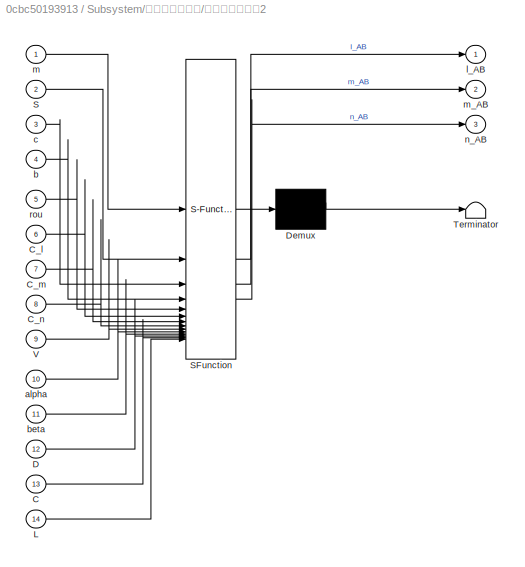
BLOCK [SubSystem] Subsystem/飞行器自身参数/飞行器本体参数2
  ErrorFcn = Stateflow.Translate.translate
  PermitHierarchicalResolution = ExplicitOnly
  SFBlockType = MATLAB Function
  TreatAsAtomicUnit = on
BLOCK [Demux] Subsystem/飞行器自身参数/飞行器本体参数2/ Demux 
  Outputs = 1
BLOCK [S-Function] Subsystem/飞行器自身参数/飞行器本体参数2/ SFunction 
  EnableBusSupport = on
  FunctionName = sf_sfun
  PortCounts = [14 4]
  SFcnIsStateOwnerBlock = off
  SFunctionDeploymentMode = off
  Tag = Stateflow S-Function 12
BLOCK [Terminator] Subsystem/飞行器自身参数/飞行器本体参数2/ Terminator 
BLOCK [Inport] Subsystem/飞行器自身参数/飞行器本体参数2/C
  Port = 13
BLOCK [Inport] Subsystem/飞行器自身参数/飞行器本体参数2/C_l
  Port = 6
BLOCK [Inport] Subsystem/飞行器自身参数/飞行器本体参数2/C_m
  Port = 7
BLOCK [Inport] Subsystem/飞行器自身参数/飞行器本体参数2/C_n
  Port = 8
BLOCK [Inport] Subsystem/飞行器自身参数/飞行器本体参数2/D
  Port = 12
BLOCK [Inport] Subsystem/飞行器自身参数/飞行器本体参数2/L
  Port = 14
BLOCK [Inport] Subsystem/飞行器自身参数/飞行器本体参数2/S
  Port = 2
BLOCK [Inport] Subsystem/飞行器自身参数/飞行器本体参数2/V
  Port = 9
BLOCK [Inport] Subsystem/飞行器自身参数/飞行器本体参数2/alpha
  Port = 10
BLOCK [Inport] Subsystem/飞行器自身参数/飞行器本体参数2/b
  Port = 4
BLOCK [Inport] Subsystem/飞行器自身参数/飞行器本体参数2/beta
  Port = 11
BLOCK [Inport] Subsystem/飞行器自身参数/飞行器本体参数2/c
  Port = 3
BLOCK [Outport] Subsystem/飞行器自身参数/飞行器本体参数2/l_AB
BLOCK [Inport] Subsystem/飞行器自身参数/飞行器本体参数2/m
BLOCK [Outport] Subsystem/飞行器自身参数/飞行器本体参数2/m_AB
  Port = 2
BLOCK [Outport] Subsystem/飞行器自身参数/飞行器本体参数2/n_AB
  Port = 3
BLOCK [Inport] Subsystem/飞行器自身参数/飞行器本体参数2/rou
  Port = 5
BLOCK [SubSystem] Subsystem/飞行器自身参数/飞行器本体参数3
  ErrorFcn = Stateflow.Translate.translate
  PermitHierarchicalResolution = ExplicitOnly
  SFBlockType = MATLAB Function
  TreatAsAtomicUnit = on
BLOCK [Demux] Subsystem/飞行器自身参数/飞行器本体参数3/ Demux 
  Outputs = 1
BLOCK [S-Function] Subsystem/飞行器自身参数/飞行器本体参数3/ SFunction 
  EnableBusSupport = on
  FunctionName = sf_sfun
  PortCounts = [1 4]
  SFcnIsStateOwnerBlock = off
  SFunctionDeploymentMode = off
  Tag = Stateflow S-Function 13
BLOCK [Terminator] Subsystem/飞行器自身参数/飞行器本体参数3/ Terminator 
BLOCK [Outport] Subsystem/飞行器自身参数/飞行器本体参数3/Ix
BLOCK [Outport] Subsystem/飞行器自身参数/飞行器本体参数3/Iy
  Port = 2
BLOCK [Outport] Subsystem/飞行器自身参数/飞行器本体参数3/Iz
  Port = 3
BLOCK [Inport] Subsystem/飞行器自身参数/飞行器本体参数3/m
BLOCK [SubSystem] Subsystem1
BLOCK [Demux] Subsystem1/Demux
  Outputs = 3
BLOCK [Inport] Subsystem1/In1
BLOCK [Scope] Subsystem1/Scope4
  Floating = off
  NumInputPorts = 1
  ScopeSpecificationString = Simulink.scopes.TimeScopeBlockCfg('CurrentConfiguration', extmgr.ConfigurationSet(extmgr.Configuration('Core','General UI',true),extmgr.Configuration('Core','Source UI',true),extmgr.Configuration('Sources','WiredSimulink',true,'DataLoggingVariableName','ScopeData4'),extmgr.Configuration('Visuals','Time Domain',true,'SerializedDisplays',{struct('MinYLimReal','6410520.99606','MaxYLimReal','6411053.2...<+1468ch>
BLOCK [Scope] Subsystem1/Scope5
  Floating = off
  NumInputPorts = 1
  ScopeSpecificationString = Simulink.scopes.TimeScopeBlockCfg('CurrentConfiguration', extmgr.ConfigurationSet(extmgr.Configuration('Core','General UI',true),extmgr.Configuration('Core','Source UI',true),extmgr.Configuration('Sources','WiredSimulink',true,'DataLoggingVariableName','ScopeData5'),extmgr.Configuration('Visuals','Time Domain',true,'SerializedDisplays',{struct('MinYLimReal','118.79495','MaxYLimReal','118.80056','Y...<+1434ch>
BLOCK [Scope] Subsystem1/Scope6
  Floating = off
  NumInputPorts = 1
  ScopeSpecificationString = Simulink.scopes.TimeScopeBlockCfg('CurrentConfiguration', extmgr.ConfigurationSet(extmgr.Configuration('Core','General UI',true),extmgr.Configuration('Core','Source UI',true),extmgr.Configuration('Sources','WiredSimulink',true,'DataLoggingVariableName','ScopeData6'),extmgr.Configuration('Visuals','Time Domain',true,'SerializedDisplays',{struct('MinYLimReal','31.99685','MaxYLimReal','32.00035','YLa...<+1395ch>
BLOCK [SubSystem] Subsystem2
BLOCK [Demux] Subsystem2/Demux
  Outputs = 3
BLOCK [Inport] Subsystem2/In1
BLOCK [Scope] Subsystem2/Scope4
  Floating = off
  NumInputPorts = 1
  ScopeSpecificationString = Simulink.scopes.TimeScopeBlockCfg('CurrentConfiguration', extmgr.ConfigurationSet(extmgr.Configuration('Core','General UI',true),extmgr.Configuration('Core','Source UI',true),extmgr.Configuration('Sources','WiredSimulink',true,'DataLoggingVariableName','ScopeData4'),extmgr.Configuration('Visuals','Time Domain',true,'SerializedDisplays',{struct('MinYLimReal','-197320118382.30667','MaxYLimReal','219...<+1473ch>
BLOCK [Scope] Subsystem2/Scope5
  Floating = off
  NumInputPorts = 1
  ScopeSpecificationString = Simulink.scopes.TimeScopeBlockCfg('CurrentConfiguration', extmgr.ConfigurationSet(extmgr.Configuration('Core','General UI',true),extmgr.Configuration('Core','Source UI',true),extmgr.Configuration('Sources','WiredSimulink',true,'DataLoggingVariableName','ScopeData5'),extmgr.Configuration('Visuals','Time Domain',true,'SerializedDisplays',{struct('MinYLimReal','177.09805','MaxYLimReal','180.32244','Y...<+1403ch>
BLOCK [Scope] Subsystem2/Scope6
  Floating = off
  NumInputPorts = 1
  ScopeSpecificationString = Simulink.scopes.TimeScopeBlockCfg('CurrentConfiguration', extmgr.ConfigurationSet(extmgr.Configuration('Core','General UI',true),extmgr.Configuration('Core','Source UI',true),extmgr.Configuration('Sources','WiredSimulink',true,'DataLoggingVariableName','ScopeData6'),extmgr.Configuration('Visuals','Time Domain',true,'SerializedDisplays',{struct('MinYLimReal','-0.71346','MaxYLimReal','6.42111','YLab...<+1389ch>
BLOCK [SubSystem] Subsystem3
BLOCK [Demux] Subsystem3/Demux
  Outputs = 3
BLOCK [Inport] Subsystem3/In1
BLOCK [Scope] Subsystem3/Scope4
  Floating = off
  NumInputPorts = 1
  ScopeSpecificationString = Simulink.scopes.TimeScopeBlockCfg('CurrentConfiguration', extmgr.ConfigurationSet(extmgr.Configuration('Core','General UI',true),extmgr.Configuration('Core','Source UI',true),extmgr.Configuration('Sources','WiredSimulink',true,'DataLoggingVariableName','ScopeData4'),extmgr.Configuration('Visuals','Time Domain',true,'SerializedDisplays',{struct('MinYLimReal','-8.26779','MaxYLimReal','94.41008','YLa...<+1393ch>
BLOCK [Scope] Subsystem3/Scope5
  Floating = off
  NumInputPorts = 1
  ScopeSpecificationString = Simulink.scopes.TimeScopeBlockCfg('CurrentConfiguration', extmgr.ConfigurationSet(extmgr.Configuration('Core','General UI',true),extmgr.Configuration('Core','Source UI',true),extmgr.Configuration('Sources','WiredSimulink',true,'DataLoggingVariableName','ScopeData5'),extmgr.Configuration('Visuals','Time Domain',true,'SerializedDisplays',{struct('MinYLimReal','2.03376','MaxYLimReal','11.69616','YLab...<+1391ch>
BLOCK [Scope] Subsystem3/Scope6
  Floating = off
  NumInputPorts = 1
  ScopeSpecificationString = Simulink.scopes.TimeScopeBlockCfg('CurrentConfiguration', extmgr.ConfigurationSet(extmgr.Configuration('Core','General UI',true),extmgr.Configuration('Core','Source UI',true),extmgr.Configuration('Sources','WiredSimulink',true,'DataLoggingVariableName','ScopeData6'),extmgr.Configuration('Visuals','Time Domain',true,'SerializedDisplays',{struct('MinYLimReal','0.86393','MaxYLimReal','4.92863','YLabe...<+1387ch>
BLOCK [SubSystem] Subsystem4
BLOCK [Demux] Subsystem4/Demux
  Outputs = 3
BLOCK [Inport] Subsystem4/In1
BLOCK [Scope] Subsystem4/Scope4
  Floating = off
  NumInputPorts = 1
  ScopeSpecificationString = Simulink.scopes.TimeScopeBlockCfg('CurrentConfiguration', extmgr.ConfigurationSet(extmgr.Configuration('Core','General UI',true),extmgr.Configuration('Core','Source UI',true),extmgr.Configuration('Sources','WiredSimulink',true,'DataLoggingVariableName','ScopeData4'),extmgr.Configuration('Visuals','Time Domain',true,'SerializedDisplays',{struct('MinYLimReal','-1.25','MaxYLimReal','11.25','YLabelRea...<+1375ch>
BLOCK [Scope] Subsystem4/Scope5
  Floating = off
  NumInputPorts = 1
  ScopeSpecificationString = Simulink.scopes.TimeScopeBlockCfg('CurrentConfiguration', extmgr.ConfigurationSet(extmgr.Configuration('Core','General UI',true),extmgr.Configuration('Core','Source UI',true),extmgr.Configuration('Sources','WiredSimulink',true,'DataLoggingVariableName','ScopeData5'),extmgr.Configuration('Visuals','Time Domain',true,'SerializedDisplays',{struct('MinYLimReal','-1.25','MaxYLimReal','11.25','YLabelRea...<+1375ch>
BLOCK [Scope] Subsystem4/Scope6
  Floating = off
  NumInputPorts = 1
  ScopeSpecificationString = Simulink.scopes.TimeScopeBlockCfg('CurrentConfiguration', extmgr.ConfigurationSet(extmgr.Configuration('Core','General UI',true),extmgr.Configuration('Core','Source UI',true),extmgr.Configuration('Sources','WiredSimulink',true,'DataLoggingVariableName','ScopeData6'),extmgr.Configuration('Visuals','Time Domain',true,'SerializedDisplays',{struct('MinYLimReal','-1.25','MaxYLimReal','11.25','YLabelRea...<+1375ch>
ANNOTATION Subsystem/飞行器自身参数: function [D,C,L,l_AB,m_AB,n_AB,Iz,Iy,Iz1] = fcn(m,S,c,b,X_cg,rou,C_D,C_C,C_L,C_l,C_m,C_n,V,alpha,beta) q_guji = 0.5*rou*V^2; D = C_D*q_guji*S; %阻力 C = C_C*q_guji*S; %侧力 L = C_L*q_guji*S; %升力 l_AB = C_l*q_guji*S*b; %翻滚力矩 m_AB = C_m*q_guji*S*c + X_cg*( D*sin(alpha) + L*cos(alpha) ); n_AB = C_n*q_guji*S*b + X_cg*C
LINE Constant:1 -> Subsystem:1
LINE Subsystem/Constant10:1 -> Subsystem/角速率方程组12:7
LINE Subsystem/Constant11:1 -> Subsystem/角速率方程组12:8
LINE Subsystem/Constant12:1 -> Subsystem/角速率方程组12:9
LINE Subsystem/Constant14:1 -> Subsystem/速度方程组1:5
LINE Subsystem/Constant18:1 -> Subsystem/速度方程组1:6
LINE Subsystem/Constant19:1 -> Subsystem/速度方程组1:7
LINE Subsystem/Constant1:1 -> Subsystem/速度方程组12:5
LINE Subsystem/Constant22:1 -> Subsystem/气流姿态角方程组1:4
LINE Subsystem/Constant26:1 -> Subsystem/飞行器自身参数:1
LINE Subsystem/Constant27:1 -> Subsystem/飞行器自身参数:2
LINE Subsystem/Constant28:1 -> Subsystem/飞行器自身参数:3
LINE Subsystem/Constant2:1 -> Subsystem/速度方程组12:6
LINE Subsystem/Constant30:1 -> Subsystem/飞行器自身参数:4
LINE Subsystem/Constant31:1 -> Subsystem/飞行器自身参数:5
LINE Subsystem/Constant32:1 -> Subsystem/飞行器自身参数:6
LINE Subsystem/Constant33:1 -> Subsystem/飞行器自身参数:7
LINE Subsystem/Constant34:1 -> Subsystem/飞行器自身参数:8
LINE Subsystem/Constant35:1 -> Subsystem/飞行器自身参数:9
LINE Subsystem/Constant36:1 -> Subsystem/飞行器自身参数:10
LINE Subsystem/Constant37:1 -> Subsystem/飞行器自身参数:11
LINE Subsystem/Constant3:1 -> Subsystem/速度方程组12:7
LINE Subsystem/Constant4:1 -> Subsystem/速度方程组12:8
LINE Subsystem/Constant5:1 -> Subsystem/速度方程组12:9
LINE Subsystem/Constant6:1 -> Subsystem/气流姿态角方程组12:4
LINE Subsystem/Constant7:1 -> Subsystem/角速率方程组12:4
LINE Subsystem/Constant8:1 -> Subsystem/角速率方程组12:5
LINE Subsystem/Constant9:1 -> Subsystem/角速率方程组12:6
LINE Subsystem/Constant:1 -> Subsystem/速度方程组12:4
LINE Subsystem/Demux1:1 -> Subsystem/Goto:1
LINE Subsystem/Demux1:10 -> Subsystem/Goto8:1
LINE Subsystem/Demux1:11 -> Subsystem/Goto9:1
LINE Subsystem/Demux1:12 -> Subsystem/Goto10:1
LINE Subsystem/Demux1:2 -> Subsystem/Goto1:1
LINE Subsystem/Demux1:3 -> Subsystem/Goto11:1
LINE Subsystem/Demux1:4 -> Subsystem/Goto2:1
LINE Subsystem/Demux1:5 -> Subsystem/Goto3:1
LINE Subsystem/Demux1:6 -> Subsystem/Goto4:1
LINE Subsystem/Demux1:7 -> Subsystem/Goto5:1
LINE Subsystem/Demux1:8 -> Subsystem/Goto6:1
LINE Subsystem/Demux1:9 -> Subsystem/Goto7:1
LINE Subsystem/Demux:1 -> Subsystem/位置方程组12:1
LINE Subsystem/Demux:10 -> Subsystem/角速率方程组12:1
LINE Subsystem/Demux:11 -> Subsystem/角速率方程组12:2
LINE Subsystem/Demux:12 -> Subsystem/角速率方程组12:3
LINE Subsystem/Demux:2 -> Subsystem/位置方程组12:2
LINE Subsystem/Demux:3 -> Subsystem/位置方程组12:3
LINE Subsystem/Demux:4 -> Subsystem/速度方程组12:1
LINE Subsystem/Demux:5 -> Subsystem/速度方程组12:2
LINE Subsystem/Demux:6 -> Subsystem/速度方程组12:3
LINE Subsystem/Demux:7 -> Subsystem/气流姿态角方程组12:1
LINE Subsystem/Demux:8 -> Subsystem/气流姿态角方程组12:2
LINE Subsystem/Demux:9 -> Subsystem/气流姿态角方程组12:3
LINE Subsystem/From10:1 -> Subsystem/气流姿态角方程组1:2
LINE Subsystem/From11:1 -> Subsystem/气流姿态角方程组1:3
LINE Subsystem/From12:1 -> Subsystem/位置方程组1:4
LINE Subsystem/From13:1 -> Subsystem/位置方程组1:5
LINE Subsystem/From14:1 -> Subsystem/位置方程组1:6
LINE Subsystem/From15:1 -> Subsystem/气流姿态角方程组1:5
LINE Subsystem/From16:1 -> Subsystem/气流姿态角方程组1:6
LINE Subsystem/From17:1 -> Subsystem/气流姿态角方程组1:7
LINE Subsystem/From18:1 -> Subsystem/气流姿态角方程组1:8
LINE Subsystem/From19:1 -> Subsystem/气流姿态角方程组1:9
LINE Subsystem/From1:1 -> Subsystem/位置方程组1:2
LINE Subsystem/From20:1 -> Subsystem/气流姿态角方程组1:10
LINE Subsystem/From21:1 -> Subsystem/气流姿态角方程组1:11
LINE Subsystem/From22:1 -> Subsystem/气流姿态角方程组1:12
LINE Subsystem/From23:1 -> Subsystem/气流姿态角方程组1:13
LINE Subsystem/From24:1 -> Subsystem/气流姿态角方程组1:14
LINE Subsystem/From25:1 -> Subsystem/速度方程组1:10
LINE Subsystem/From26:1 -> Subsystem/速度方程组1:11
LINE Subsystem/From27:1 -> Subsystem/速度方程组1:12
LINE Subsystem/From28:1 -> Subsystem/Mux4:1
LINE Subsystem/From29:1 -> Subsystem/Mux4:2
LINE Subsystem/From2:1 -> Subsystem/位置方程组1:3
LINE Subsystem/From30:1 -> Subsystem/Mux4:3
LINE Subsystem/From31:1 -> Subsystem/Mux5:1
LINE Subsystem/From32:1 -> Subsystem/Mux5:2
LINE Subsystem/From33:1 -> Subsystem/Mux5:3
LINE Subsystem/From34:1 -> Subsystem/Mux6:1
LINE Subsystem/From35:1 -> Subsystem/Mux6:2
LINE Subsystem/From36:1 -> Subsystem/Mux6:3
LINE Subsystem/From37:1 -> Subsystem/Mux7:1
LINE Subsystem/From38:1 -> Subsystem/Mux7:2
LINE Subsystem/From39:1 -> Subsystem/Mux7:3
LINE Subsystem/From3:1 -> Subsystem/速度方程组1:1
LINE Subsystem/From40:1 -> Subsystem/飞行器自身参数:12
LINE Subsystem/From41:1 -> Subsystem/飞行器自身参数:13
LINE Subsystem/From42:1 -> Subsystem/飞行器自身参数:14
LINE Subsystem/From43:1 -> Subsystem/角速率方程组1:4
LINE Subsystem/From44:1 -> Subsystem/角速率方程组1:5
LINE Subsystem/From45:1 -> Subsystem/角速率方程组1:6
LINE Subsystem/From46:1 -> Subsystem/角速率方程组1:7
LINE Subsystem/From47:1 -> Subsystem/角速率方程组1:8
LINE Subsystem/From48:1 -> Subsystem/角速率方程组1:9
LINE Subsystem/From49:1 -> Subsystem/速度方程组1:4
LINE Subsystem/From4:1 -> Subsystem/速度方程组1:2
LINE Subsystem/From50:1 -> Subsystem/速度方程组1:8
LINE Subsystem/From51:1 -> Subsystem/速度方程组1:9
LINE Subsystem/From5:1 -> Subsystem/速度方程组1:3
LINE Subsystem/From6:1 -> Subsystem/角速率方程组1:1
LINE Subsystem/From7:1 -> Subsystem/角速率方程组1:2
LINE Subsystem/From8:1 -> Subsystem/角速率方程组1:3
LINE Subsystem/From9:1 -> Subsystem/气流姿态角方程组1:1
LINE Subsystem/From:1 -> Subsystem/位置方程组1:1
LINE Subsystem/Mux4:1 -> Subsystem/位置变量组:1
LINE Subsystem/Mux5:1 -> Subsystem/速度变量组:1
LINE Subsystem/Mux6:1 -> Subsystem/气流姿态角变量组:1
LINE Subsystem/Mux7:1 -> Subsystem/角速率变量组:1
LINE Subsystem/x0:1 -> Subsystem/Demux1:1
LINE Subsystem/位置方程组1/Integrator1:1 -> Subsystem/位置方程组1/tau:1
NET Subsystem/位置方程组1/Integrator2:1 -> Subsystem/位置方程组1/delta:1, Subsystem/位置方程组1/位置方程组:2
NET Subsystem/位置方程组1/Integrator:1 -> Subsystem/位置方程组1/R:1, Subsystem/位置方程组1/位置方程组:1
LINE Subsystem/位置方程组1/R0:1 -> Subsystem/位置方程组1/Integrator:2
LINE Subsystem/位置方程组1/V:1 -> Subsystem/位置方程组1/位置方程组:3
LINE Subsystem/位置方程组1/chi:1 -> Subsystem/位置方程组1/位置方程组:4
LINE Subsystem/位置方程组1/delta0:1 -> Subsystem/位置方程组1/Integrator2:2
LINE Subsystem/位置方程组1/gamma:1 -> Subsystem/位置方程组1/位置方程组:5
LINE Subsystem/位置方程组1/tau0:1 -> Subsystem/位置方程组1/Integrator1:2
LINE Subsystem/位置方程组1/位置方程组:1 -> Subsystem/位置方程组1/Integrator:1
NET Subsystem/位置方程组1/位置方程组:2 -> Subsystem/位置方程组1/Integrator1:1, Subsystem/位置方程组1/dtau:1
NET Subsystem/位置方程组1/位置方程组:3 -> Subsystem/位置方程组1/Integrator2:1, Subsystem/位置方程组1/dddelta:1
LINE Subsystem/位置方程组12/Integrator1:1 -> Subsystem/位置方程组12/tau:1
NET Subsystem/位置方程组12/Integrator2:1 -> Subsystem/位置方程组12/delta:1, Subsystem/位置方程组12/位置方程组:2
NET Subsystem/位置方程组12/Integrator:1 -> Subsystem/位置方程组12/R:1, Subsystem/位置方程组12/位置方程组:1
LINE Subsystem/位置方程组12/R0:1 -> Subsystem/位置方程组12/Integrator:2
LINE Subsystem/位置方程组12/V:1 -> Subsystem/位置方程组12/位置方程组:3
LINE Subsystem/位置方程组12/chi:1 -> Subsystem/位置方程组12/位置方程组:4
LINE Subsystem/位置方程组12/delta0:1 -> Subsystem/位置方程组12/Integrator2:2
LINE Subsystem/位置方程组12/gamma:1 -> Subsystem/位置方程组12/位置方程组:5
LINE Subsystem/位置方程组12/tau0:1 -> Subsystem/位置方程组12/Integrator1:2
LINE Subsystem/位置方程组12/位置方程组:1 -> Subsystem/位置方程组12/Integrator:1
NET Subsystem/位置方程组12/位置方程组:2 -> Subsystem/位置方程组12/Integrator1:1, Subsystem/位置方程组12/dtau:1
NET Subsystem/位置方程组12/位置方程组:3 -> Subsystem/位置方程组12/Integrator2:1, Subsystem/位置方程组12/dddelta:1
NET Subsystem/位置方程组12:1 -> Subsystem/Mux:1, Subsystem/速度方程组12:10
LINE Subsystem/位置方程组12:2 -> Subsystem/Mux:2
LINE Subsystem/位置方程组12:3 -> Subsystem/气流姿态角方程组12:5
NET Subsystem/位置方程组12:4 -> Subsystem/Mux:3, Subsystem/气流姿态角方程组12:6, Subsystem/速度方程组12:11
LINE Subsystem/位置方程组12:5 -> Subsystem/气流姿态角方程组12:7
LINE Subsystem/位置方程组1:1 -> Subsystem/Goto18:1
LINE Subsystem/位置方程组1:2 -> Subsystem/Goto25:1
LINE Subsystem/位置方程组1:3 -> Subsystem/Goto17:1
LINE Subsystem/位置方程组1:4 -> Subsystem/Goto15:1
LINE Subsystem/位置方程组1:5 -> Subsystem/Goto16:1
NET Subsystem/气流姿态角方程组1/Integrator1:1 -> Subsystem/气流姿态角方程组1/beta:1, Subsystem/气流姿态角方程组1/气流姿态角方程组:10
NET Subsystem/气流姿态角方程组1/Integrator2:1 -> Subsystem/气流姿态角方程组1/sigma:1, Subsystem/气流姿态角方程组1/气流姿态角方程组:11
NET Subsystem/气流姿态角方程组1/Integrator:1 -> Subsystem/气流姿态角方程组1/alpha:1, Subsystem/气流姿态角方程组1/气流姿态角方程组:9
LINE Subsystem/气流姿态角方程组1/alpha0:1 -> Subsystem/气流姿态角方程组1/Integrator:2
LINE Subsystem/气流姿态角方程组1/beta0:1 -> Subsystem/气流姿态角方程组1/Integrator1:2
LINE Subsystem/气流姿态角方程组1/chi:1 -> Subsystem/气流姿态角方程组1/气流姿态角方程组:5
LINE Subsystem/气流姿态角方程组1/dchi:1 -> Subsystem/气流姿态角方程组1/气流姿态角方程组:6
LINE Subsystem/气流姿态角方程组1/ddelta:1 -> Subsystem/气流姿态角方程组1/气流姿态角方程组:4
LINE Subsystem/气流姿态角方程组1/delta:1 -> Subsystem/气流姿态角方程组1/气流姿态角方程组:3
LINE Subsystem/气流姿态角方程组1/dgamma:1 -> Subsystem/气流姿态角方程组1/气流姿态角方程组:8
LINE Subsystem/气流姿态角方程组1/dtau:1 -> Subsystem/气流姿态角方程组1/气流姿态角方程组:2
LINE Subsystem/气流姿态角方程组1/gamma:1 -> Subsystem/气流姿态角方程组1/气流姿态角方程组:7
LINE Subsystem/气流姿态角方程组1/p:1 -> Subsystem/气流姿态角方程组1/气流姿态角方程组:12
LINE Subsystem/气流姿态角方程组1/q:1 -> Subsystem/气流姿态角方程组1/气流姿态角方程组:13
LINE Subsystem/气流姿态角方程组1/r:1 -> Subsystem/气流姿态角方程组1/气流姿态角方程组:14
LINE Subsystem/气流姿态角方程组1/sigma0:1 -> Subsystem/气流姿态角方程组1/Integrator2:2
LINE Subsystem/气流姿态角方程组1/w_E:1 -> Subsystem/气流姿态角方程组1/气流姿态角方程组:1
NET Subsystem/气流姿态角方程组1/气流姿态角方程组/alpha:1 -> Subsystem/气流姿态角方程组1/气流姿态角方程组/气流姿态角方程组1:8, Subsystem/气流姿态角方程组1/气流姿态角方程组/气流姿态角方程组:9
NET Subsystem/气流姿态角方程组1/气流姿态角方程组/beta:1 -> Subsystem/气流姿态角方程组1/气流姿态角方程组/气流姿态角方程组1:10, Subsystem/气流姿态角方程组1/气流姿态角方程组/气流姿态角方程组:10
NET Subsystem/气流姿态角方程组1/气流姿态角方程组/chi:1 -> Subsystem/气流姿态角方程组1/气流姿态角方程组/气流姿态角方程组1:5, Subsystem/气流姿态角方程组1/气流姿态角方程组/气流姿态角方程组:5
NET Subsystem/气流姿态角方程组1/气流姿态角方程组/dchi:1 -> Subsystem/气流姿态角方程组1/气流姿态角方程组/气流姿态角方程组1:6, Subsystem/气流姿态角方程组1/气流姿态角方程组/气流姿态角方程组:6
NET Subsystem/气流姿态角方程组1/气流姿态角方程组/ddelta:1 -> Subsystem/气流姿态角方程组1/气流姿态角方程组/气流姿态角方程组1:4, Subsystem/气流姿态角方程组1/气流姿态角方程组/气流姿态角方程组:4
NET Subsystem/气流姿态角方程组1/气流姿态角方程组/delta:1 -> Subsystem/气流姿态角方程组1/气流姿态角方程组/气流姿态角方程组1:3, Subsystem/气流姿态角方程组1/气流姿态角方程组/气流姿态角方程组:3
LINE Subsystem/气流姿态角方程组1/气流姿态角方程组/dgamma:1 -> Subsystem/气流姿态角方程组1/气流姿态角方程组/气流姿态角方程组:8
NET Subsystem/气流姿态角方程组1/气流姿态角方程组/dtau:1 -> Subsystem/气流姿态角方程组1/气流姿态角方程组/气流姿态角方程组1:2, Subsystem/气流姿态角方程组1/气流姿态角方程组/气流姿态角方程组:2
NET Subsystem/气流姿态角方程组1/气流姿态角方程组/gamma:1 -> Subsystem/气流姿态角方程组1/气流姿态角方程组/气流姿态角方程组1:7, Subsystem/气流姿态角方程组1/气流姿态角方程组/气流姿态角方程组:7
NET Subsystem/气流姿态角方程组1/气流姿态角方程组/p:1 -> Subsystem/气流姿态角方程组1/气流姿态角方程组/气流姿态角方程组1:11, Subsystem/气流姿态角方程组1/气流姿态角方程组/气流姿态角方程组:12
NET Subsystem/气流姿态角方程组1/气流姿态角方程组/q:1 -> Subsystem/气流姿态角方程组1/气流姿态角方程组/气流姿态角方程组1:12, Subsystem/气流姿态角方程组1/气流姿态角方程组/气流姿态角方程组:13
NET Subsystem/气流姿态角方程组1/气流姿态角方程组/r:1 -> Subsystem/气流姿态角方程组1/气流姿态角方程组/气流姿态角方程组1:13, Subsystem/气流姿态角方程组1/气流姿态角方程组/气流姿态角方程组:14
LINE Subsystem/气流姿态角方程组1/气流姿态角方程组/sigma:1 -> Subsystem/气流姿态角方程组1/气流姿态角方程组/气流姿态角方程组:11
NET Subsystem/气流姿态角方程组1/气流姿态角方程组/w_E:1 -> Subsystem/气流姿态角方程组1/气流姿态角方程组/气流姿态角方程组1:1, Subsystem/气流姿态角方程组1/气流姿态角方程组/气流姿态角方程组:1
LINE Subsystem/气流姿态角方程组1/气流姿态角方程组/气流姿态角方程组1:1 -> Subsystem/气流姿态角方程组1/气流姿态角方程组/dsigma:1
NET Subsystem/气流姿态角方程组1/气流姿态角方程组/气流姿态角方程组:1 -> Subsystem/气流姿态角方程组1/气流姿态角方程组/dalpha:1, Subsystem/气流姿态角方程组1/气流姿态角方程组/气流姿态角方程组1:9
LINE Subsystem/气流姿态角方程组1/气流姿态角方程组/气流姿态角方程组:2 -> Subsystem/气流姿态角方程组1/气流姿态角方程组/dbeta:1
LINE Subsystem/气流姿态角方程组1/气流姿态角方程组:1 -> Subsystem/气流姿态角方程组1/Integrator:1
LINE Subsystem/气流姿态角方程组1/气流姿态角方程组:2 -> Subsystem/气流姿态角方程组1/Integrator1:1
LINE Subsystem/气流姿态角方程组1/气流姿态角方程组:3 -> Subsystem/气流姿态角方程组1/Integrator2:1
NET Subsystem/气流姿态角方程组12/Integrator1:1 -> Subsystem/气流姿态角方程组12/beta:1, Subsystem/气流姿态角方程组12/气流姿态角方程组:10
NET Subsystem/气流姿态角方程组12/Integrator2:1 -> Subsystem/气流姿态角方程组12/sigma:1, Subsystem/气流姿态角方程组12/气流姿态角方程组:11
NET Subsystem/气流姿态角方程组12/Integrator:1 -> Subsystem/气流姿态角方程组12/alpha:1, Subsystem/气流姿态角方程组12/气流姿态角方程组:9
LINE Subsystem/气流姿态角方程组12/alpha0:1 -> Subsystem/气流姿态角方程组12/Integrator:2
LINE Subsystem/气流姿态角方程组12/beta0:1 -> Subsystem/气流姿态角方程组12/Integrator1:2
LINE Subsystem/气流姿态角方程组12/chi:1 -> Subsystem/气流姿态角方程组12/气流姿态角方程组:5
LINE Subsystem/气流姿态角方程组12/dchi:1 -> Subsystem/气流姿态角方程组12/气流姿态角方程组:6
LINE Subsystem/气流姿态角方程组12/ddelta:1 -> Subsystem/气流姿态角方程组12/气流姿态角方程组:4
LINE Subsystem/气流姿态角方程组12/delta:1 -> Subsystem/气流姿态角方程组12/气流姿态角方程组:3
LINE Subsystem/气流姿态角方程组12/dgamma:1 -> Subsystem/气流姿态角方程组12/气流姿态角方程组:8
LINE Subsystem/气流姿态角方程组12/dtau:1 -> Subsystem/气流姿态角方程组12/气流姿态角方程组:2
LINE Subsystem/气流姿态角方程组12/gamma:1 -> Subsystem/气流姿态角方程组12/气流姿态角方程组:7
LINE Subsystem/气流姿态角方程组12/p:1 -> Subsystem/气流姿态角方程组12/气流姿态角方程组:12
LINE Subsystem/气流姿态角方程组12/q:1 -> Subsystem/气流姿态角方程组12/气流姿态角方程组:13
LINE Subsystem/气流姿态角方程组12/r:1 -> Subsystem/气流姿态角方程组12/气流姿态角方程组:14
LINE Subsystem/气流姿态角方程组12/sigma0:1 -> Subsystem/气流姿态角方程组12/Integrator2:2
LINE Subsystem/气流姿态角方程组12/w_E:1 -> Subsystem/气流姿态角方程组12/气流姿态角方程组:1
NET Subsystem/气流姿态角方程组12/气流姿态角方程组/alpha:1 -> Subsystem/气流姿态角方程组12/气流姿态角方程组/气流姿态角方程组1:8, Subsystem/气流姿态角方程组12/气流姿态角方程组/气流姿态角方程组:9
NET Subsystem/气流姿态角方程组12/气流姿态角方程组/beta:1 -> Subsystem/气流姿态角方程组12/气流姿态角方程组/气流姿态角方程组1:10, Subsystem/气流姿态角方程组12/气流姿态角方程组/气流姿态角方程组:10
NET Subsystem/气流姿态角方程组12/气流姿态角方程组/chi:1 -> Subsystem/气流姿态角方程组12/气流姿态角方程组/气流姿态角方程组1:5, Subsystem/气流姿态角方程组12/气流姿态角方程组/气流姿态角方程组:5
NET Subsystem/气流姿态角方程组12/气流姿态角方程组/dchi:1 -> Subsystem/气流姿态角方程组12/气流姿态角方程组/气流姿态角方程组1:6, Subsystem/气流姿态角方程组12/气流姿态角方程组/气流姿态角方程组:6
NET Subsystem/气流姿态角方程组12/气流姿态角方程组/ddelta:1 -> Subsystem/气流姿态角方程组12/气流姿态角方程组/气流姿态角方程组1:4, Subsystem/气流姿态角方程组12/气流姿态角方程组/气流姿态角方程组:4
NET Subsystem/气流姿态角方程组12/气流姿态角方程组/delta:1 -> Subsystem/气流姿态角方程组12/气流姿态角方程组/气流姿态角方程组1:3, Subsystem/气流姿态角方程组12/气流姿态角方程组/气流姿态角方程组:3
LINE Subsystem/气流姿态角方程组12/气流姿态角方程组/dgamma:1 -> Subsystem/气流姿态角方程组12/气流姿态角方程组/气流姿态角方程组:8
NET Subsystem/气流姿态角方程组12/气流姿态角方程组/dtau:1 -> Subsystem/气流姿态角方程组12/气流姿态角方程组/气流姿态角方程组1:2, Subsystem/气流姿态角方程组12/气流姿态角方程组/气流姿态角方程组:2
NET Subsystem/气流姿态角方程组12/气流姿态角方程组/gamma:1 -> Subsystem/气流姿态角方程组12/气流姿态角方程组/气流姿态角方程组1:7, Subsystem/气流姿态角方程组12/气流姿态角方程组/气流姿态角方程组:7
NET Subsystem/气流姿态角方程组12/气流姿态角方程组/p:1 -> Subsystem/气流姿态角方程组12/气流姿态角方程组/气流姿态角方程组1:11, Subsystem/气流姿态角方程组12/气流姿态角方程组/气流姿态角方程组:12
NET Subsystem/气流姿态角方程组12/气流姿态角方程组/q:1 -> Subsystem/气流姿态角方程组12/气流姿态角方程组/气流姿态角方程组1:12, Subsystem/气流姿态角方程组12/气流姿态角方程组/气流姿态角方程组:13
NET Subsystem/气流姿态角方程组12/气流姿态角方程组/r:1 -> Subsystem/气流姿态角方程组12/气流姿态角方程组/气流姿态角方程组1:13, Subsystem/气流姿态角方程组12/气流姿态角方程组/气流姿态角方程组:14
LINE Subsystem/气流姿态角方程组12/气流姿态角方程组/sigma:1 -> Subsystem/气流姿态角方程组12/气流姿态角方程组/气流姿态角方程组:11
NET Subsystem/气流姿态角方程组12/气流姿态角方程组/w_E:1 -> Subsystem/气流姿态角方程组12/气流姿态角方程组/气流姿态角方程组1:1, Subsystem/气流姿态角方程组12/气流姿态角方程组/气流姿态角方程组:1
LINE Subsystem/气流姿态角方程组12/气流姿态角方程组/气流姿态角方程组1:1 -> Subsystem/气流姿态角方程组12/气流姿态角方程组/dsigma:1
NET Subsystem/气流姿态角方程组12/气流姿态角方程组/气流姿态角方程组:1 -> Subsystem/气流姿态角方程组12/气流姿态角方程组/dalpha:1, Subsystem/气流姿态角方程组12/气流姿态角方程组/气流姿态角方程组1:9
LINE Subsystem/气流姿态角方程组12/气流姿态角方程组/气流姿态角方程组:2 -> Subsystem/气流姿态角方程组12/气流姿态角方程组/dbeta:1
LINE Subsystem/气流姿态角方程组12/气流姿态角方程组:1 -> Subsystem/气流姿态角方程组12/Integrator:1
LINE Subsystem/气流姿态角方程组12/气流姿态角方程组:2 -> Subsystem/气流姿态角方程组12/Integrator1:1
LINE Subsystem/气流姿态角方程组12/气流姿态角方程组:3 -> Subsystem/气流姿态角方程组12/Integrator2:1
LINE Subsystem/气流姿态角方程组12:1 -> Subsystem/Mux2:1
LINE Subsystem/气流姿态角方程组12:2 -> Subsystem/Mux2:2
NET Subsystem/气流姿态角方程组12:3 -> Subsystem/Mux2:3, Subsystem/速度方程组12:12
LINE Subsystem/气流姿态角方程组1:1 -> Subsystem/Goto27:1
LINE Subsystem/气流姿态角方程组1:2 -> Subsystem/Goto26:1
LINE Subsystem/气流姿态角方程组1:3 -> Subsystem/Goto24:1
NET Subsystem/角速率方程组1/Integrator1:1 -> Subsystem/角速率方程组1/q:1, Subsystem/角速率方程组1/角速率方程组:8
NET Subsystem/角速率方程组1/Integrator2:1 -> Subsystem/角速率方程组1/p:1, Subsystem/角速率方程组1/角速率方程组:7
NET Subsystem/角速率方程组1/Integrator3:1 -> Subsystem/角速率方程组1/r:1, Subsystem/角速率方程组1/角速率方程组:9
LINE Subsystem/角速率方程组1/Ix:1 -> Subsystem/角速率方程组1/角速率方程组:1
LINE Subsystem/角速率方程组1/Iy:1 -> Subsystem/角速率方程组1/角速率方程组:2
LINE Subsystem/角速率方程组1/Iz:1 -> Subsystem/角速率方程组1/角速率方程组:3
LINE Subsystem/角速率方程组1/l_AB:1 -> Subsystem/角速率方程组1/角速率方程组:4
LINE Subsystem/角速率方程组1/m_AB:1 -> Subsystem/角速率方程组1/角速率方程组:5
LINE Subsystem/角速率方程组1/n_AB:1 -> Subsystem/角速率方程组1/角速率方程组:6
LINE Subsystem/角速率方程组1/p0:1 -> Subsystem/角速率方程组1/Integrator2:2
LINE Subsystem/角速率方程组1/q0:1 -> Subsystem/角速率方程组1/Integrator1:2
LINE Subsystem/角速率方程组1/r0:1 -> Subsystem/角速率方程组1/Integrator3:2
LINE Subsystem/角速率方程组1/角速率方程组:1 -> Subsystem/角速率方程组1/Integrator2:1
LINE Subsystem/角速率方程组1/角速率方程组:2 -> Subsystem/角速率方程组1/Integrator1:1
LINE Subsystem/角速率方程组1/角速率方程组:3 -> Subsystem/角速率方程组1/Integrator3:1
NET Subsystem/角速率方程组12/Integrator1:1 -> Subsystem/角速率方程组12/q:1, Subsystem/角速率方程组12/角速率方程组:8
NET Subsystem/角速率方程组12/Integrator2:1 -> Subsystem/角速率方程组12/p:1, Subsystem/角速率方程组12/角速率方程组:7
NET Subsystem/角速率方程组12/Integrator3:1 -> Subsystem/角速率方程组12/r:1, Subsystem/角速率方程组12/角速率方程组:9
LINE Subsystem/角速率方程组12/Ix:1 -> Subsystem/角速率方程组12/角速率方程组:1
LINE Subsystem/角速率方程组12/Iy:1 -> Subsystem/角速率方程组12/角速率方程组:2
LINE Subsystem/角速率方程组12/Iz:1 -> Subsystem/角速率方程组12/角速率方程组:3
LINE Subsystem/角速率方程组12/l_AB:1 -> Subsystem/角速率方程组12/角速率方程组:4
LINE Subsystem/角速率方程组12/m_AB:1 -> Subsystem/角速率方程组12/角速率方程组:5
LINE Subsystem/角速率方程组12/n_AB:1 -> Subsystem/角速率方程组12/角速率方程组:6
LINE Subsystem/角速率方程组12/p0:1 -> Subsystem/角速率方程组12/Integrator2:2
LINE Subsystem/角速率方程组12/q0:1 -> Subsystem/角速率方程组12/Integrator1:2
LINE Subsystem/角速率方程组12/r0:1 -> Subsystem/角速率方程组12/Integrator3:2
LINE Subsystem/角速率方程组12/角速率方程组:1 -> Subsystem/角速率方程组12/Integrator2:1
LINE Subsystem/角速率方程组12/角速率方程组:2 -> Subsystem/角速率方程组12/Integrator1:1
LINE Subsystem/角速率方程组12/角速率方程组:3 -> Subsystem/角速率方程组12/Integrator3:1
NET Subsystem/角速率方程组12:1 -> Subsystem/Mux3:1, Subsystem/气流姿态角方程组12:12
NET Subsystem/角速率方程组12:2 -> Subsystem/Mux3:2, Subsystem/气流姿态角方程组12:13
NET Subsystem/角速率方程组12:3 -> Subsystem/Mux3:3, Subsystem/气流姿态角方程组12:14
LINE Subsystem/角速率方程组1:1 -> Subsystem/Goto21:1
LINE Subsystem/角速率方程组1:2 -> Subsystem/Goto22:1
LINE Subsystem/角速率方程组1:3 -> Subsystem/Goto23:1
LINE Subsystem/速度方程组1/C:1 -> Subsystem/速度方程组1/速度方程组:6
LINE Subsystem/速度方程组1/D:1 -> Subsystem/速度方程组1/速度方程组:1
NET Subsystem/速度方程组1/Integrator1:1 -> Subsystem/速度方程组1/chi:1, Subsystem/速度方程组1/速度方程组:10
NET Subsystem/速度方程组1/Integrator2:1 -> Subsystem/速度方程组1/gamma:1, Subsystem/速度方程组1/速度方程组:11
NET Subsystem/速度方程组1/Integrator:1 -> Subsystem/速度方程组1/V:1, Subsystem/速度方程组1/速度方程组:9
LINE Subsystem/速度方程组1/L:1 -> Subsystem/速度方程组1/速度方程组:5
LINE Subsystem/速度方程组1/R:1 -> Subsystem/速度方程组1/速度方程组:7
LINE Subsystem/速度方程组1/V0:1 -> Subsystem/速度方程组1/Integrator:2
LINE Subsystem/速度方程组1/chi0:1 -> Subsystem/速度方程组1/Integrator1:2
LINE Subsystem/速度方程组1/delta:1 -> Subsystem/速度方程组1/速度方程组:8
LINE Subsystem/速度方程组1/g:1 -> Subsystem/速度方程组1/速度方程组:3
LINE Subsystem/速度方程组1/gamma0:1 -> Subsystem/速度方程组1/Integrator2:2
LINE Subsystem/速度方程组1/m:1 -> Subsystem/速度方程组1/速度方程组:2
LINE Subsystem/速度方程组1/sigma:1 -> Subsystem/速度方程组1/速度方程组:12
LINE Subsystem/速度方程组1/w_E:1 -> Subsystem/速度方程组1/速度方程组:4
LINE Subsystem/速度方程组1/速度方程组:1 -> Subsystem/速度方程组1/Integrator:1
NET Subsystem/速度方程组1/速度方程组:2 -> Subsystem/速度方程组1/Integrator1:1, Subsystem/速度方程组1/dchi:1
NET Subsystem/速度方程组1/速度方程组:3 -> Subsystem/速度方程组1/Integrator2:1, Subsystem/速度方程组1/dgamma:1
LINE Subsystem/速度方程组12/C:1 -> Subsystem/速度方程组12/速度方程组:6
LINE Subsystem/速度方程组12/D:1 -> Subsystem/速度方程组12/速度方程组:1
NET Subsystem/速度方程组12/Integrator1:1 -> Subsystem/速度方程组12/chi:1, Subsystem/速度方程组12/速度方程组:10
NET Subsystem/速度方程组12/Integrator2:1 -> Subsystem/速度方程组12/gamma:1, Subsystem/速度方程组12/速度方程组:11
NET Subsystem/速度方程组12/Integrator:1 -> Subsystem/速度方程组12/V:1, Subsystem/速度方程组12/速度方程组:9
LINE Subsystem/速度方程组12/L:1 -> Subsystem/速度方程组12/速度方程组:5
LINE Subsystem/速度方程组12/R:1 -> Subsystem/速度方程组12/速度方程组:7
LINE Subsystem/速度方程组12/V0:1 -> Subsystem/速度方程组12/Integrator:2
LINE Subsystem/速度方程组12/chi0:1 -> Subsystem/速度方程组12/Integrator1:2
LINE Subsystem/速度方程组12/delta:1 -> Subsystem/速度方程组12/速度方程组:8
LINE Subsystem/速度方程组12/g:1 -> Subsystem/速度方程组12/速度方程组:3
LINE Subsystem/速度方程组12/gamma0:1 -> Subsystem/速度方程组12/Integrator2:2
LINE Subsystem/速度方程组12/m:1 -> Subsystem/速度方程组12/速度方程组:2
LINE Subsystem/速度方程组12/sigma:1 -> Subsystem/速度方程组12/速度方程组:12
LINE Subsystem/速度方程组12/w_E:1 -> Subsystem/速度方程组12/速度方程组:4
LINE Subsystem/速度方程组12/速度方程组:1 -> Subsystem/速度方程组12/Integrator:1
NET Subsystem/速度方程组12/速度方程组:2 -> Subsystem/速度方程组12/Integrator1:1, Subsystem/速度方程组12/dchi:1
NET Subsystem/速度方程组12/速度方程组:3 -> Subsystem/速度方程组12/Integrator2:1, Subsystem/速度方程组12/dgamma:1
NET Subsystem/速度方程组12:1 -> Subsystem/Mux1:1, Subsystem/位置方程组12:4
NET Subsystem/速度方程组12:2 -> Subsystem/Mux1:2, Subsystem/位置方程组12:5, Subsystem/气流姿态角方程组12:8
LINE Subsystem/速度方程组12:3 -> Subsystem/气流姿态角方程组12:9
NET Subsystem/速度方程组12:4 -> Subsystem/Mux1:3, Subsystem/位置方程组12:6, Subsystem/气流姿态角方程组12:10
LINE Subsystem/速度方程组12:5 -> Subsystem/气流姿态角方程组12:11
LINE Subsystem/速度方程组1:1 -> Subsystem/Goto12:1
LINE Subsystem/速度方程组1:2 -> Subsystem/Goto13:1
LINE Subsystem/速度方程组1:3 -> Subsystem/Goto14:1
LINE Subsystem/速度方程组1:4 -> Subsystem/Goto19:1
LINE Subsystem/速度方程组1:5 -> Subsystem/Goto20:1
LINE Subsystem/飞行器自身参数/C_C:1 -> Subsystem/飞行器自身参数/飞行器本体参数1:4
LINE Subsystem/飞行器自身参数/C_D:1 -> Subsystem/飞行器自身参数/飞行器本体参数1:3
LINE Subsystem/飞行器自身参数/C_L:1 -> Subsystem/飞行器自身参数/飞行器本体参数1:5
LINE Subsystem/飞行器自身参数/C_l:1 -> Subsystem/飞行器自身参数/飞行器本体参数2:6
LINE Subsystem/飞行器自身参数/C_m:1 -> Subsystem/飞行器自身参数/飞行器本体参数2:7
LINE Subsystem/飞行器自身参数/C_n:1 -> Subsystem/飞行器自身参数/飞行器本体参数2:8
NET Subsystem/飞行器自身参数/S:1 -> Subsystem/飞行器自身参数/飞行器本体参数1:1, Subsystem/飞行器自身参数/飞行器本体参数2:2
NET Subsystem/飞行器自身参数/V:1 -> Subsystem/飞行器自身参数/飞行器本体参数1:6, Subsystem/飞行器自身参数/飞行器本体参数2:9
LINE Subsystem/飞行器自身参数/alpha:1 -> Subsystem/飞行器自身参数/飞行器本体参数2:10
LINE Subsystem/飞行器自身参数/b:1 -> Subsystem/飞行器自身参数/飞行器本体参数2:4
LINE Subsystem/飞行器自身参数/beta:1 -> Subsystem/飞行器自身参数/飞行器本体参数2:11
LINE Subsystem/飞行器自身参数/c:1 -> Subsystem/飞行器自身参数/飞行器本体参数2:3
NET Subsystem/飞行器自身参数/m:1 -> Subsystem/飞行器自身参数/飞行器本体参数2:1, Subsystem/飞行器自身参数/飞行器本体参数3:1
NET Subsystem/飞行器自身参数/rou:1 -> Subsystem/飞行器自身参数/飞行器本体参数1:2, Subsystem/飞行器自身参数/飞行器本体参数2:5
NET Subsystem/飞行器自身参数/飞行器本体参数1:1 -> Subsystem/飞行器自身参数/D:1, Subsystem/飞行器自身参数/飞行器本体参数2:12
NET Subsystem/飞行器自身参数/飞行器本体参数1:2 -> Subsystem/飞行器自身参数/C:1, Subsystem/飞行器自身参数/飞行器本体参数2:13
NET Subsystem/飞行器自身参数/飞行器本体参数1:3 -> Subsystem/飞行器自身参数/L:1, Subsystem/飞行器自身参数/飞行器本体参数2:14
LINE Subsystem/飞行器自身参数/飞行器本体参数2:1 -> Subsystem/飞行器自身参数/l_AB:1
LINE Subsystem/飞行器自身参数/飞行器本体参数2:2 -> Subsystem/飞行器自身参数/m_AB:1
LINE Subsystem/飞行器自身参数/飞行器本体参数2:3 -> Subsystem/飞行器自身参数/n_AB:1
LINE Subsystem/飞行器自身参数/飞行器本体参数3:1 -> Subsystem/飞行器自身参数/Ix:1
LINE Subsystem/飞行器自身参数/飞行器本体参数3:2 -> Subsystem/飞行器自身参数/Iy:1
LINE Subsystem/飞行器自身参数/飞行器本体参数3:3 -> Subsystem/飞行器自身参数/Iz:1
LINE Subsystem/飞行器自身参数:1 -> Subsystem/Goto28:1
LINE Subsystem/飞行器自身参数:2 -> Subsystem/Goto29:1
LINE Subsystem/飞行器自身参数:3 -> Subsystem/Goto30:1
LINE Subsystem/飞行器自身参数:4 -> Subsystem/Goto31:1
LINE Subsystem/飞行器自身参数:5 -> Subsystem/Goto32:1
LINE Subsystem/飞行器自身参数:6 -> Subsystem/Goto33:1
LINE Subsystem/飞行器自身参数:7 -> Subsystem/Goto34:1
LINE Subsystem/飞行器自身参数:8 -> Subsystem/Goto35:1
LINE Subsystem/飞行器自身参数:9 -> Subsystem/Goto36:1
LINE Subsystem1/Demux:1 -> Subsystem1/Scope4:1
LINE Subsystem1/Demux:2 -> Subsystem1/Scope5:1
LINE Subsystem1/Demux:3 -> Subsystem1/Scope6:1
LINE Subsystem1/In1:1 -> Subsystem1/Demux:1
LINE Subsystem2/Demux:1 -> Subsystem2/Scope4:1
LINE Subsystem2/Demux:2 -> Subsystem2/Scope5:1
LINE Subsystem2/Demux:3 -> Subsystem2/Scope6:1
LINE Subsystem2/In1:1 -> Subsystem2/Demux:1
LINE Subsystem3/Demux:1 -> Subsystem3/Scope4:1
LINE Subsystem3/Demux:2 -> Subsystem3/Scope5:1
LINE Subsystem3/Demux:3 -> Subsystem3/Scope6:1
LINE Subsystem3/In1:1 -> Subsystem3/Demux:1
LINE Subsystem4/Demux:1 -> Subsystem4/Scope4:1
LINE Subsystem4/Demux:2 -> Subsystem4/Scope5:1
LINE Subsystem4/Demux:3 -> Subsystem4/Scope6:1
LINE Subsystem4/In1:1 -> Subsystem4/Demux:1
LINE Subsystem:1 -> Subsystem1:1
LINE Subsystem:2 -> Subsystem2:1
LINE Subsystem:3 -> Subsystem3:1
LINE Subsystem:4 -> Subsystem4:1
note: NET lines group one-source signal fan-out (src -> all destinations, sorted); 1:1 wires keep LINE
CHART Subsystem/角速率方程组12/角速率方程组 states=1 transitions=1
  STATE_LABEL 'eML_blk_kernel()'
  STATE_LABEL 'SCRIPT:\nfunction [dp,dq,dr] = fcn(Ix,Iy,Iz,l_AB,m_AB,n_AB,p,q,r)\n\ndp = ( Iy-Iz )*q*r/Ix + l_AB/Ix;\ndq = ( Iz-Ix )*p*r/Iy + m_AB/Iy;\ndr = ( Iz-Ix )*p*q/Iz + n_AB/Iz;'
CHART Subsystem/位置方程组1/位置方程组 states=1 transitions=1
  STATE_LABEL 'eML_blk_kernel()'
  STATE_LABEL 'SCRIPT:\nfunction [dR,dtau,ddelta] = fcn(R,delta,V,chi,gamma)\n\ndR = V*sin(gamma);\ndtau = V*cos(gamma) * sin(chi) / ( R*cos(delta) );\nddelta = V*cos(gamma) * cos(chi) / R;'
CHART Subsystem/气流姿态角方程组1/气流姿态角方程组/气流姿态角方程组 states=1 transitions=1
  STATE_LABEL 'eML_blk_kernel()'
  STATE_LABEL 'SCRIPT:\nfunction [dalpha,dbeta] = fcn(w_E,dtau,delta,ddelta,chi,dchi,gamma,dgamma,alpha,beta,sigma,p,q,r)\n\ndalpha = q - ( p*cos(alpha) + r*sin(alpha) )*tan(beta) + ...\n        sin(sigma) / cos(beta) *( dchi*cos(gamma) - ddelta*sin(chi)*sin(gamma) + ( dtau + w_E )*( cos(delta)*cos(chi)*sin(gamma) - sin(delta)*cos(gamma) ) ) - ...\n        cos(sigma) / cos(beta) *( dgamma - ddelta*cos(chi) - ( dtau +...<+297ch>'
CHART Subsystem/气流姿态角方程组1/气流姿态角方程组/气流姿态角方程组1 states=1 transitions=1
  STATE_LABEL 'eML_blk_kernel()'
  STATE_LABEL 'SCRIPT:\nfunction dsigma = fcn(w_E,dtau,delta,ddelta,chi,dchi,gamma,alpha,dalpha,beta,p,q,r)\n\ndsigma = -p*cos(alpha)*cos(beta) - q*sin(beta) - r*sin(alpha)*cos(beta) + dalpha*sin(beta)+ ...\n        dchi*sin(gamma) - ddelta*sin(chi)*cos(gamma) + (dtau + w_E)*( cos(delta)*cos(chi)*cos(gamma) + sin(delta)*sin(gamma) );\n\n'
CHART Subsystem/角速率方程组1/角速率方程组 states=1 transitions=1
  STATE_LABEL 'eML_blk_kernel()'
  STATE_LABEL 'SCRIPT:\nfunction [dp,dq,dr] = fcn(Ix,Iy,Iz,l_AB,m_AB,n_AB,p,q,r)\n\ndp = ( Iy-Iz )*q*r/Ix + l_AB/Ix;\ndq = ( Iz-Ix )*p*r/Iy + m_AB/Iy;\ndr = ( Iz-Ix )*p*q/Iz + n_AB/Iz;'
CHART Subsystem/速度方程组1/速度方程组 states=1 transitions=1
  STATE_LABEL 'eML_blk_kernel()'
  STATE_LABEL 'SCRIPT:\nfunction [dV,dchi,dgamma] = fcn(D,m,g,w_E,L,C,R,delta,V,chi,gamma,sigma)\n\ndV = -D/m - g*sin(gamma) + w_E^2*R*cos(delta)/( sin(gamma)*cos(delta) - cos(gamma)*sin(delta)*cos(chi) );\ndchi = -( L*sin(sigma) - C*cos(sigma) )/( m*V*cos(gamma) ) + V*cos(gamma)*sin(chi)*tan(delta) / R + ...\n        2*w_E*( sin(delta) - cos(delta)*tan(gamma)*cos(chi) ) +... \n        w_E^2*R*sin(delta)*cos(delta)*si...<+240ch>'
CHART Subsystem/飞行器自身参数/飞行器本体参数1 states=1 transitions=1
  STATE_LABEL 'eML_blk_kernel()'
  STATE_LABEL 'SCRIPT:\nfunction [D,C,L] = fcn(S,rou,C_D,C_C,C_L,V)\n\nq_guji = 0.5*rou*V^2;\n\nD = C_D*q_guji*S;    %阻力\nC = C_C*q_guji*S;    %侧力\nL = C_L*q_guji*S;    %升力\n'
CHART Subsystem/飞行器自身参数/飞行器本体参数2 states=1 transitions=1
  STATE_LABEL 'eML_blk_kernel()'
  STATE_LABEL 'SCRIPT:\nfunction [l_AB,m_AB,n_AB] = fcn(m,S,c,b,rou,C_l,C_m,C_n,V,alpha,beta,D,C,L)\n\nq_guji = 0.5*rou*V^2;\n\nX_cg = 0.00000000016469*m^2 - 0.00005571500480*m + 7.36721170979675;\n\nl_AB = C_l*q_guji*S*b;                                          %翻滚力矩\nm_AB = C_m*q_guji*S*c + X_cg*( D*sin(alpha) + L*cos(alpha) );   %俯仰力矩\nn_AB = C_n*q_guji*S*b + X_cg*C*cos(beta);                       %偏航力矩\n'
CHART Subsystem/飞行器自身参数/飞行器本体参数3 states=1 transitions=1
  STATE_LABEL 'eML_blk_kernel()'
  STATE_LABEL 'SCRIPT:\nfunction [Ix,Iy,Iz] = fcn(m)\n\n% Ix = -7.1*1e-5*m^2 + 19.91*m - 5.9340*1e4;\n% Iy = -8.03*1e-4*m^2 + 219.74*m - 1.69*1e6;\n% Iz = -8.03*1e-4*m^2 + 219.74*m - 1.69*1e6;\n\nIx = 1.0e+004*(-0.00000000709597*m^2 + 0.00199093623971*m - 5.94301903021396);\nIy = 1.0e+006*(-0.00000000080331*m^2 + 0.00021974209927*m - 1.69055469296301);\nIz = Iy;'
CHART MATLAB Function states=1 transitions=1
  STATE_LABEL 'eML_blk_kernel()'
  STATE_LABEL 'SCRIPT:\nfunction [aero_params, atmosphere] = calculateAeroParameters(...\n    height, velocity, mach, alpha_rad, beta_rad, ...\n    le_deg, re_deg, rud_deg, p_rads, q_rads, r_rads, mass_kg)\n% CALCULATEAEROPARAMETERS 计算飞行器气动参数和大气环境参数\n%\n% 输入参数:\n%   height     - 几何高度 [m] (地心到飞行器质心距离减去地球半径)\n%   velocity   - 飞行速度 [m/s]\n%   mach       - 马赫数\n%   alpha_rad  - 迎角 [rad]\n%   beta_rad   - 侧滑角 [rad]\n%   le_deg  ...<+3608ch>'
CHART Subsystem/速度方程组12/速度方程组 states=1 transitions=1
  STATE_LABEL 'eML_blk_kernel()'
  STATE_LABEL 'SCRIPT:\nfunction [dV,dchi,dgamma] = fcn(D,m,g,w_E,L,C,R,delta,V,chi,gamma,sigma)\n\ndV = -D/m - g*sin(gamma) + w_E^2*R*cos(delta)/( sin(gamma)*cos(delta) - cos(gamma)*sin(delta)*cos(chi) );\ndchi = -( L*sin(sigma) - C*cos(sigma) )/( m*V*cos(gamma) ) + V*cos(gamma)*sin(chi)*tan(delta) / R + ...\n        2*w_E*( sin(delta) - cos(delta)*tan(gamma)*cos(chi) ) +... \n        w_E^2*R*sin(delta)*cos(delta)*si...<+240ch>'
CHART Subsystem/位置方程组12/位置方程组 states=1 transitions=1
  STATE_LABEL 'eML_blk_kernel()'
  STATE_LABEL 'SCRIPT:\nfunction [dR,dtau,ddelta] = fcn(R,delta,V,chi,gamma)\n\ndR = V*sin(gamma);\ndtau = V*cos(gamma) * sin(chi) / ( R*cos(delta) );\nddelta = V*cos(gamma) * cos(chi) / R;'
CHART Subsystem/气流姿态角方程组12/气流姿态角方程组/气流姿态角方程组 states=1 transitions=1
  STATE_LABEL 'eML_blk_kernel()'
  STATE_LABEL 'SCRIPT:\nfunction [dalpha,dbeta] = fcn(w_E,dtau,delta,ddelta,chi,dchi,gamma,dgamma,alpha,beta,sigma,p,q,r)\n\ndalpha = q - ( p*cos(alpha) + r*sin(alpha) )*tan(beta) + ...\n        sin(sigma) / cos(beta) *( dchi*cos(gamma) - ddelta*sin(chi)*sin(gamma) + ( dtau + w_E )*( cos(delta)*cos(chi)*sin(gamma) - sin(delta)*cos(gamma) ) ) - ...\n        cos(sigma) / cos(beta) *( dgamma - ddelta*cos(chi) - ( dtau +...<+297ch>'
CHART Subsystem/气流姿态角方程组12/气流姿态角方程组/气流姿态角方程组1 states=1 transitions=1
  STATE_LABEL 'eML_blk_kernel()'
  STATE_LABEL 'SCRIPT:\nfunction dsigma = fcn(w_E,dtau,delta,ddelta,chi,dchi,gamma,alpha,dalpha,beta,p,q,r)\n\ndsigma = -p*cos(alpha)*cos(beta) - q*sin(beta) - r*sin(alpha)*cos(beta) + dalpha*sin(beta)+ ...\n        dchi*sin(gamma) - ddelta*sin(chi)*cos(gamma) + (dtau + w_E)*( cos(delta)*cos(chi)*cos(gamma) + sin(delta)*sin(gamma) );\n\n'
CHART  states=0 transitions=0
CHART  states=0 transitions=0
CHART  states=0 transitions=0
CHART  states=0 transitions=0
CHART  states=0 transitions=0
CHART  states=0 transitions=0
CHART  states=0 transitions=0
CHART  states=0 transitions=0
CHART  states=0 transitions=0
CHART  states=0 transitions=0
CHART  states=0 transitions=0
CHART  states=0 transitions=0
CHART  states=0 transitions=0
CHART  states=0 transitions=0
